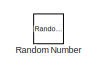
[diagram: root canvas - part 1/3, top left region]
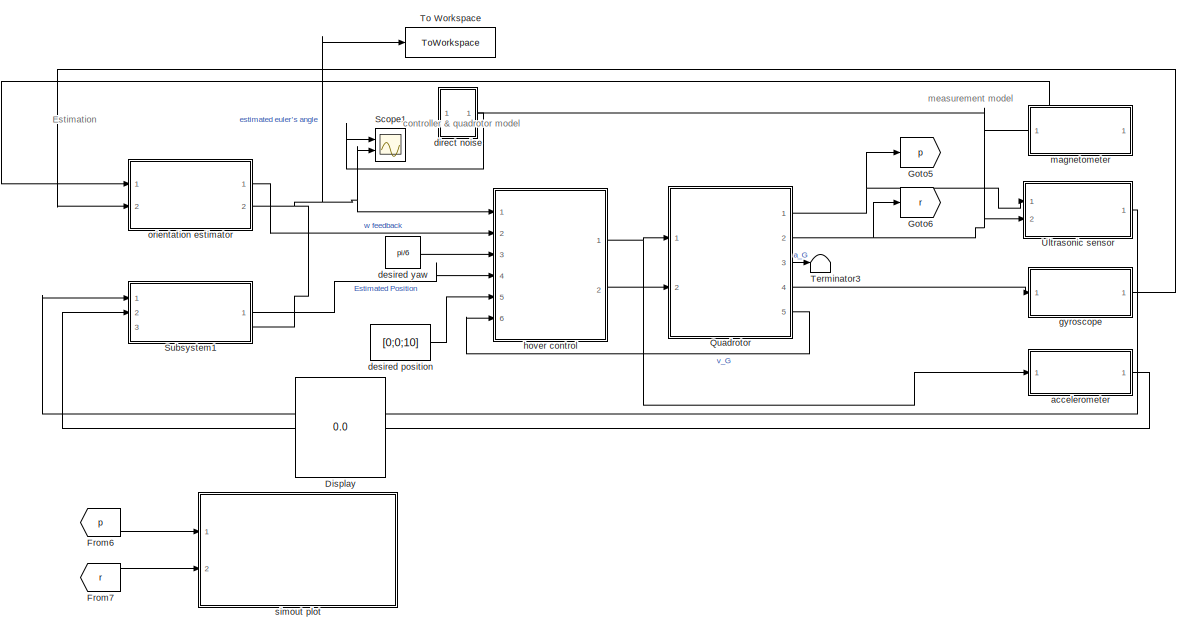
[diagram: root canvas - part 2/3, top center region]
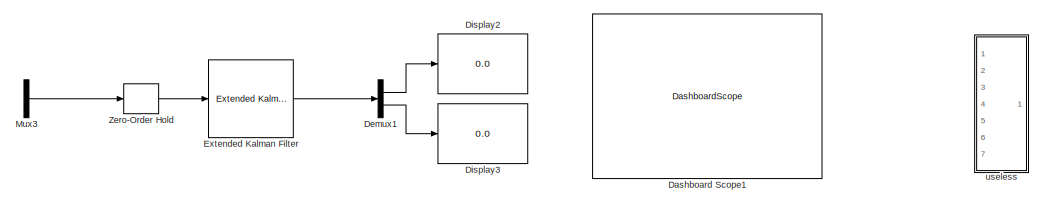
[diagram: root canvas - part 3/3, bottom right region]
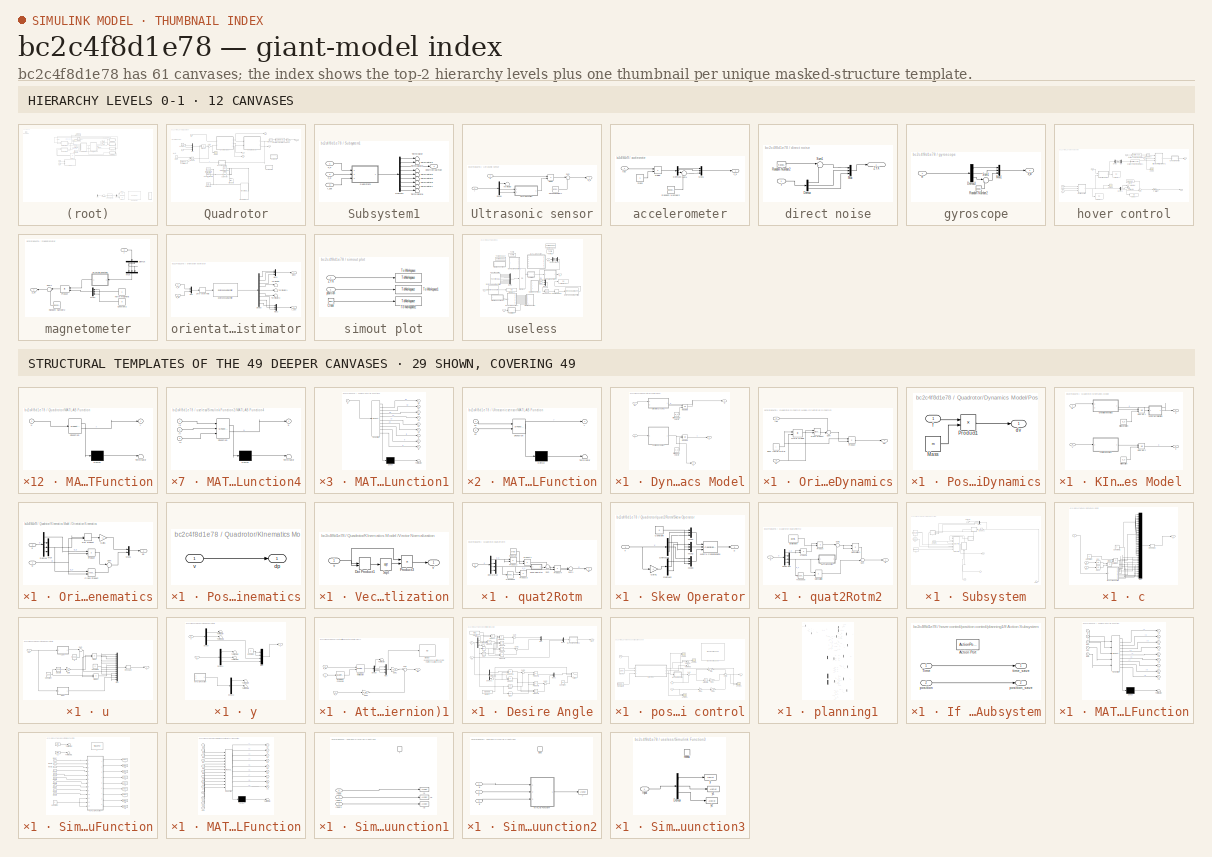
[diagram: thumbnail index - top-2 hierarchy levels (12 canvases) + 29 structural-template representatives of the remaining 49 canvases]
MODEL slx_bc2c4f8d1e78
KIND model
CONFIG AbsTol = auto
CONFIG EnableMultiTasking = off
CONFIG FixedStep = auto
CONFIG MaxStep = auto
CONFIG MinStep = auto
CONFIG RelTol = 1e-1
CONFIG SampleTimeConstraint = Unconstrained
CONFIG SolverName = VariableStepAuto
CONFIG StartTime = 0.0
CONFIG StopTime = 40
BLOCK [DashboardScope] Dashboard Scope1
  Commented = on
BLOCK [Demux] Demux1
  Commented = on
  Outputs = 2
  Ports = [1, 2]
BLOCK [Display] Display
  Decimation = 1
  Ports = [1]
BLOCK [Display] Display2
  Commented = on
  Decimation = 1
  Ports = [1]
BLOCK [Display] Display3
  Commented = on
  Decimation = 1
  Ports = [1]
BLOCK [Reference] Extended Kalman Filter  REF=sharedTrackingLibrary/Extended Kalman Filter
  Commented = on
  Ports = [1, 1]
  SourceBlock = sharedTrackingLibrary/Extended Kalman Filter
  SourceProductBaseCode = CT,DR,TF,ID,LP,NV,AR,RO,RR,UV,VE
  SourceType = Extended Kalman Filter
BLOCK [From] From6
  GotoTag = p
BLOCK [From] From7
  GotoTag = r
BLOCK [Goto] Goto5
  GotoTag = p
BLOCK [Goto] Goto6
  GotoTag = r
BLOCK [Mux] Mux3
  Commented = on
  DisplayOption = bar
  Inputs = 2
  Ports = [2, 1]
BLOCK [SubSystem] Quadrotor
  Ports = [2, 5]
  RequestExecContextInheritance = off
BLOCK [Reference] Quadrotor/6-DOF Joint  REF=sm_lib/Joints/6-DOF Joint
  Commented = on
  Ports = [0, 0, 0, 0, 0, 1, 1]
  SourceBlock = sm_lib/Joints/6-DOF Joint
  SourceProductBaseCode = MS
  SourceType = 6-DOF Joint
BLOCK [Reference] Quadrotor/Brick Solid  REF=sm_lib/Body Elements/Brick Solid
  Commented = on
  NameLocation = right
  Ports = [0, 0, 0, 0, 0, 0, 1]
  SourceBlock = sm_lib/Body Elements/Brick Solid
  SourceProductBaseCode = MS
  SourceType = Brick Solid
BLOCK [Constant] Quadrotor/Constant
  Value = 0
BLOCK [SubSystem] Quadrotor/Dynamics Model
  Ports = [2, 3]
  RequestExecContextInheritance = off
BLOCK [Constant] Quadrotor/Dynamics Model/Initial Angular Velocity
  Value = w_0
BLOCK [Constant] Quadrotor/Dynamics Model/Initial Linear Velocity
  Value = v_0
BLOCK [Integrator] Quadrotor/Dynamics Model/Integrator3
  InitialConditionSource = external
  Ports = [2, 1]
BLOCK [Integrator] Quadrotor/Dynamics Model/Integrator4
  InitialConditionSource = external
  Ports = [2, 1]
BLOCK [SubSystem] Quadrotor/Dynamics Model/Orientation Dynamics
  PortSchema = {"entries":[{"content":{"sides":[{"content":{"connectorIds":["In1"]},"type":"ConnectorPlacement.EquallySpacedRectSide","uuid":"c0bebf24-b4c5-4120-b4bc-e257700e30ac"},{"content":{"connectorIds":["In2","Out1"],"side":"RIGHT"},"type":"ConnectorPlacement.EquallySpacedRectSide","uuid":"4f6c7abb-67af-4a33-8fe1-31c16aba2e01"},{"content":{"connectorIds":[],"side":"TOP"},"type":"ConnectorPlacement.EquallyS...<+390ch>
  Ports = [2, 1]
  RequestExecContextInheritance = off
BLOCK [Constant] Quadrotor/Dynamics Model/Orientation Dynamics/Body Inertia Matrix
  Value = I
BLOCK [Reference] Quadrotor/Dynamics Model/Orientation Dynamics/Cross Product  REF=vrlib/Utilities/Cross Product
  Ports = [2, 1]
  SourceBlock = vrlib/Utilities/Cross Product
  SourceProductBaseCode = SL
  SourceType = Cross Product
BLOCK [Product] Quadrotor/Dynamics Model/Orientation Dynamics/Matrix Multiply
  Multiplication = Matrix(*)
  Ports = [2, 1]
BLOCK [Product] Quadrotor/Dynamics Model/Orientation Dynamics/Product
  Inputs = /*
  Multiplication = Matrix(*)
  OutDataTypeStr = Inherit: Inherit via back propagation
  Ports = [2, 1]
BLOCK [Sum] Quadrotor/Dynamics Model/Orientation Dynamics/Sum
  Inputs = +-|
  Ports = [2, 1]
BLOCK [Outport] Quadrotor/Dynamics Model/Orientation Dynamics/dw
BLOCK [Inport] Quadrotor/Dynamics Model/Orientation Dynamics/tau
BLOCK [Inport] Quadrotor/Dynamics Model/Orientation Dynamics/w
  Port = 2
BLOCK [SubSystem] Quadrotor/Dynamics Model/Position Dynamics
  Ports = [1, 1]
  RequestExecContextInheritance = off
BLOCK [Constant] Quadrotor/Dynamics Model/Position Dynamics/Mass
  Value = m
BLOCK [Product] Quadrotor/Dynamics Model/Position Dynamics/Product1
  Inputs = */
  Ports = [2, 1]
BLOCK [Outport] Quadrotor/Dynamics Model/Position Dynamics/dv
BLOCK [Inport] Quadrotor/Dynamics Model/Position Dynamics/f
BLOCK [Outport] Quadrotor/Dynamics Model/a
  Port = 3
BLOCK [Inport] Quadrotor/Dynamics Model/f
  Port = 2
  PortDimensions = 3
BLOCK [Inport] Quadrotor/Dynamics Model/tau
  PortDimensions = 3
BLOCK [Outport] Quadrotor/Dynamics Model/v
  Port = 2
BLOCK [Outport] Quadrotor/Dynamics Model/w
BLOCK [Reference] Quadrotor/External Force and Torque  REF=sm_lib/Forces and
Torques/External Force
and Torque
  Commented = on
  Ports = [0, 0, 0, 0, 0, 2, 1]
  SourceBlock = sm_lib/Forces and\nTorques/External Force\nand Torque
  SourceProductBaseCode = MS
  SourceType = External Force\nand Torque
BLOCK [Gain] Quadrotor/Gain
  Gain = 1/1.63
BLOCK [SubSystem] Quadrotor/KInematics Model 
  Ports = [2, 2]
  RequestExecContextInheritance = off
BLOCK [Constant] Quadrotor/KInematics Model /Initial Orientation
  Value = q_0
BLOCK [Constant] Quadrotor/KInematics Model /Initial Position
  Value = p_0
BLOCK [Integrator] Quadrotor/KInematics Model /Integrator1
  InitialConditionSource = external
  Ports = [2, 1]
BLOCK [Integrator] Quadrotor/KInematics Model /Integrator2
  InitialConditionSource = external
  Ports = [2, 1]
BLOCK [SubSystem] Quadrotor/KInematics Model /Orientation Kinematics
  PortSchema = {"entries":[{"content":{"sides":[{"content":{"connectorIds":["In1"]},"type":"ConnectorPlacement.EquallySpacedRectSide","uuid":"c0bebf24-b4c5-4120-b4bc-e257700e30ac"},{"content":{"connectorIds":["In2","Out1"],"side":"RIGHT"},"type":"ConnectorPlacement.EquallySpacedRectSide","uuid":"4f6c7abb-67af-4a33-8fe1-31c16aba2e01"},{"content":{"connectorIds":[],"side":"TOP"},"type":"ConnectorPlacement.EquallyS...<+390ch>
  Ports = [2, 1]
  RequestExecContextInheritance = off
BLOCK [Reference] Quadrotor/KInematics Model /Orientation Kinematics/Cross Product  REF=vrlib/Utilities/Cross Product
  Ports = [2, 1]
  SourceBlock = vrlib/Utilities/Cross Product
  SourceProductBaseCode = SL
  SourceType = Cross Product
BLOCK [Demux] Quadrotor/KInematics Model /Orientation Kinematics/Demux
  Ports = [1, 4]
BLOCK [DotProduct] Quadrotor/KInematics Model /Orientation Kinematics/Dot Product
  OutDataTypeStr = Inherit: Inherit via internal rule
BLOCK [Gain] Quadrotor/KInematics Model /Orientation Kinematics/Gain1
  Gain = -1
BLOCK [Mux] Quadrotor/KInematics Model /Orientation Kinematics/Mux
  DisplayOption = bar
  Inputs = 3
  Ports = [3, 1]
BLOCK [Mux] Quadrotor/KInematics Model /Orientation Kinematics/Mux1
  DisplayOption = bar
  Inputs = 2
  Ports = [2, 1]
BLOCK [Product] Quadrotor/KInematics Model /Orientation Kinematics/Product
  Ports = [2, 1]
BLOCK [Sum] Quadrotor/KInematics Model /Orientation Kinematics/Sum
  Inputs = |++
  Ports = [2, 1]
BLOCK [Outport] Quadrotor/KInematics Model /Orientation Kinematics/dq
BLOCK [Inport] Quadrotor/KInematics Model /Orientation Kinematics/q
  Port = 2
BLOCK [Inport] Quadrotor/KInematics Model /Orientation Kinematics/w
BLOCK [SubSystem] Quadrotor/KInematics Model /Position Kinematics
  Ports = [1, 1]
  RequestExecContextInheritance = off
BLOCK [Outport] Quadrotor/KInematics Model /Position Kinematics/dp
BLOCK [Inport] Quadrotor/KInematics Model /Position Kinematics/v
BLOCK [SubSystem] Quadrotor/KInematics Model /Vector Normalization
  Ports = [1, 1]
  RequestExecContextInheritance = off
BLOCK [DotProduct] Quadrotor/KInematics Model /Vector Normalization/Dot Product1
  OutDataTypeStr = Inherit: Inherit via internal rule
BLOCK [Product] Quadrotor/KInematics Model /Vector Normalization/Product3
  Inputs = */
  Ports = [2, 1]
BLOCK [Sqrt] Quadrotor/KInematics Model /Vector Normalization/Sqrt
BLOCK [Inport] Quadrotor/KInematics Model /Vector Normalization/v
BLOCK [Outport] Quadrotor/KInematics Model /Vector Normalization/v'
BLOCK [Outport] Quadrotor/KInematics Model /p
  Port = 2
BLOCK [Outport] Quadrotor/KInematics Model /q
BLOCK [Inport] Quadrotor/KInematics Model /v
  Port = 2
BLOCK [Inport] Quadrotor/KInematics Model /w
BLOCK [SubSystem] Quadrotor/MATLAB Function
  ErrorFcn = Stateflow.Translate.translate
  NameLocation = top
  PermitHierarchicalResolution = ExplicitOnly
  Ports = [1, 1]
  RequestExecContextInheritance = off
  SFBlockType = MATLAB Function
  TreatAsAtomicUnit = on
BLOCK [Demux] Quadrotor/MATLAB Function/ Demux 
  Outputs = 1
  Ports = [1, 1]
BLOCK [S-Function] Quadrotor/MATLAB Function/ SFunction 
  EnableBusSupport = on
  FunctionName = sf_sfun
  PortCounts = [1 2]
  Ports = [1, 2]
  SFcnIsStateOwnerBlock = off
  SFunctionDeploymentMode = off
  Tag = Stateflow S-Function 2
BLOCK [Terminator] Quadrotor/MATLAB Function/ Terminator 
BLOCK [Inport] Quadrotor/MATLAB Function/u
BLOCK [Outport] Quadrotor/MATLAB Function/y
BLOCK [Constant] Quadrotor/Mass
BLOCK [Reference] Quadrotor/Mechanism Configuration  REF=sm_lib/Utilities/Mechanism
Configuration
  Commented = on
  Ports = [0, 0, 0, 0, 0, 0, 1]
  SourceBlock = sm_lib/Utilities/Mechanism\nConfiguration
  SourceProductBaseCode = MS
  SourceType = Mechanism\nConfiguration
BLOCK [Mux] Quadrotor/Mux
  DisplayOption = bar
  Inputs = 3
  Ports = [3, 1]
BLOCK [Product] Quadrotor/Product
  Multiplication = Matrix(*)
  Ports = [2, 1]
BLOCK [Product] Quadrotor/Product1
  Ports = [2, 1]
BLOCK [Reference] Quadrotor/Quaternions to Rotation Angles  REF=sharedtransform/Quaternions to Rotation Angles
  AttributesFormatString = Rotation Order: %<rotationOrder>
  Ports = [1, 1]
  SourceBlock = sharedtransform/Quaternions to Rotation Angles
  SourceProductBaseCode = AE,PW,DR,MT,UV,VE
  SourceType = Quat2Ang
BLOCK [Scope] Quadrotor/Scope
  Floating = off
  NumInputPorts = 1
  Ports = [1]
  ScopeSpecificationString = Simulink.scopes.TimeScopeBlockCfg('CurrentConfiguration', extmgr.ConfigurationSet(extmgr.Configuration('Core','General UI',true),extmgr.Configuration('Core','Source UI',true),extmgr.Configuration('Sources','WiredSimulink',true,'DataLoggingVariableName','ScopeData4'),extmgr.Configuration('Visuals','Time Domain',true,'SerializedDisplays',{struct('MinYLimReal','-0.68944','MaxYLimReal','0.74873','YLab...<+1380ch>
BLOCK [Reference] Quadrotor/Solver Configuration  REF=nesl_utility/Solver
Configuration
  Commented = on
  Ports = [0, 0, 0, 0, 0, 0, 1]
  SourceBlock = nesl_utility/Solver\nConfiguration
  SourceProductBaseCode = SS
  SourceType = Solver\nConfiguration
BLOCK [Sum] Quadrotor/Sum
  Inputs = |++
  Ports = [2, 1]
BLOCK [Reference] Quadrotor/Transform Sensor  REF=sm_lib/Frames and
Transforms/Transform
Sensor
  Commented = on
  NameLocation = top
  Ports = [0, 0, 0, 0, 0, 1, 11]
  SourceBlock = sm_lib/Frames and\nTransforms/Transform\nSensor
  SourceProductBaseCode = MS
  SourceType = Transform\nSensor
BLOCK [Math] Quadrotor/Transpose1
  Operator = transpose
  Ports = [1, 1]
BLOCK [Reference] Quadrotor/World Frame  REF=sm_lib/Frames and
Transforms/World Frame
  Commented = on
  Ports = [0, 0, 0, 0, 0, 0, 1]
  SourceBlock = sm_lib/Frames and\nTransforms/World Frame
  SourceProductBaseCode = MS
  SourceType = World Frame
BLOCK [Outport] Quadrotor/a
  Port = 3
  SampleTime = 1/50
BLOCK [Inport] Quadrotor/f
  Port = 2
  SampleTime = 1/50
BLOCK [Constant] Quadrotor/gravity
  Value = [0;0;-9.80665]
BLOCK [Outport] Quadrotor/p
  SampleTime = 1/50
BLOCK [SubSystem] Quadrotor/quat2Rotm
  Commented = on
  NameLocation = top
  Ports = [1, 1]
  RequestExecContextInheritance = off
BLOCK [Constant] Quadrotor/quat2Rotm/Constant
  Value = eye(3)
BLOCK [Demux] Quadrotor/quat2Rotm/Demux
  Ports = [1, 4]
BLOCK [Mux] Quadrotor/quat2Rotm/Mux
  DisplayOption = bar
  Inputs = 3
  Ports = [3, 1]
BLOCK [Product] Quadrotor/quat2Rotm/Product1
  Ports = [2, 1]
BLOCK [Product] Quadrotor/quat2Rotm/Product2
  Ports = [2, 1]
BLOCK [Product] Quadrotor/quat2Rotm/Product3
  Multiplication = Matrix(*)
  Ports = [2, 1]
BLOCK [Product] Quadrotor/quat2Rotm/Product4
  Multiplication = Matrix(*)
  Ports = [2, 1]
BLOCK [Outport] Quadrotor/quat2Rotm/R
BLOCK [SubSystem] Quadrotor/quat2Rotm/Skew Operator
  Description = S(v)
  Ports = [1, 1]
  RequestExecContextInheritance = off
BLOCK [Constant] Quadrotor/quat2Rotm/Skew Operator/Constant
  Value = 0
BLOCK [Demux] Quadrotor/quat2Rotm/Skew Operator/Demux1
  Outputs = 3
  Ports = [1, 3]
BLOCK [Demux] Quadrotor/quat2Rotm/Skew Operator/Demux2
  Outputs = 3
  Ports = [1, 3]
BLOCK [Gain] Quadrotor/quat2Rotm/Skew Operator/Gain1
  Gain = -1
BLOCK [Concatenate] Quadrotor/quat2Rotm/Skew Operator/Matrix Concatenate
  ConcatenateDimension = 2
  Mode = Multidimensional array
  NumInputs = 3
  Ports = [3, 1]
BLOCK [Mux] Quadrotor/quat2Rotm/Skew Operator/Mux1
  DisplayOption = bar
  Inputs = 3
  Ports = [3, 1]
BLOCK [Mux] Quadrotor/quat2Rotm/Skew Operator/Mux2
  DisplayOption = bar
  Inputs = 3
  Ports = [3, 1]
BLOCK [Mux] Quadrotor/quat2Rotm/Skew Operator/Mux3
  DisplayOption = bar
  Inputs = 3
  Ports = [3, 1]
BLOCK [Outport] Quadrotor/quat2Rotm/Skew Operator/S
BLOCK [Inport] Quadrotor/quat2Rotm/Skew Operator/v
BLOCK [Sum] Quadrotor/quat2Rotm/Sum
  Inputs = ++|
  Ports = [2, 1]
BLOCK [Sum] Quadrotor/quat2Rotm/Sum1
  Inputs = |++
  Ports = [2, 1]
BLOCK [Math] Quadrotor/quat2Rotm/Transpose
  Operator = transpose
  Ports = [1, 1]
BLOCK [Inport] Quadrotor/quat2Rotm/q
BLOCK [SubSystem] Quadrotor/quat2Rotm2
  Commented = on
  NameLocation = top
  Ports = [1, 1]
  RequestExecContextInheritance = off
BLOCK [Demux] Quadrotor/quat2Rotm2/Demux
  Ports = [1, 4]
BLOCK [Reference] Quadrotor/quat2Rotm2/Identity Matrix  REF=dspmtrx3/Identity Matrix
  Ports = [0, 1]
  SourceBlock = dspmtrx3/Identity Matrix
  SourceProductBaseCode = DS
  SourceType = Identity Matrix
BLOCK [SubSystem] Quadrotor/quat2Rotm2/MATLAB Function
  ErrorFcn = Stateflow.Translate.translate
  PermitHierarchicalResolution = ExplicitOnly
  Ports = [1, 1]
  RequestExecContextInheritance = off
  SFBlockType = MATLAB Function
  TreatAsAtomicUnit = on
BLOCK [Demux] Quadrotor/quat2Rotm2/MATLAB Function/ Demux 
  Outputs = 1
  Ports = [1, 1]
BLOCK [S-Function] Quadrotor/quat2Rotm2/MATLAB Function/ SFunction 
  EnableBusSupport = on
  FunctionName = sf_sfun
  PortCounts = [1 2]
  Ports = [1, 2]
  SFcnIsStateOwnerBlock = off
  SFunctionDeploymentMode = off
  Tag = Stateflow S-Function 4
BLOCK [Terminator] Quadrotor/quat2Rotm2/MATLAB Function/ Terminator 
BLOCK [Inport] Quadrotor/quat2Rotm2/MATLAB Function/u
BLOCK [Outport] Quadrotor/quat2Rotm2/MATLAB Function/y
BLOCK [Product] Quadrotor/quat2Rotm2/MatrixMultiply
  Multiplication = Matrix(*)
  Ports = [2, 1]
BLOCK [Product] Quadrotor/quat2Rotm2/MatrixMultiply1
  Multiplication = Matrix(*)
  Ports = [2, 1]
BLOCK [Mux] Quadrotor/quat2Rotm2/Mux
  DisplayOption = bar
  Inputs = 3
  Ports = [3, 1]
BLOCK [Product] Quadrotor/quat2Rotm2/Product
  Ports = [2, 1]
BLOCK [Product] Quadrotor/quat2Rotm2/Product1
  Ports = [2, 1]
BLOCK [Outport] Quadrotor/quat2Rotm2/R
BLOCK [Sum] Quadrotor/quat2Rotm2/Sum
  Inputs = ++|
  Ports = [2, 1]
BLOCK [Sum] Quadrotor/quat2Rotm2/Sum1
  Inputs = |++
  Ports = [2, 1]
BLOCK [Math] Quadrotor/quat2Rotm2/Transpose
  Operator = transpose
  Ports = [1, 1]
BLOCK [Inport] Quadrotor/quat2Rotm2/q
BLOCK [Outport] Quadrotor/r
  Port = 2
  SampleTime = 1/50
BLOCK [Inport] Quadrotor/tau
  SampleTime = 1/50
BLOCK [Outport] Quadrotor/v
  Port = 5
  SampleTime = 1/50
BLOCK [Outport] Quadrotor/w
  Port = 4
  SampleTime = 1/50
BLOCK [RandomNumber] Random Number
  Commented = on
  SampleTime = 0.1
BLOCK [Scope] Scope1
  Floating = off
  NumInputPorts = 2
  Ports = [2]
  ScopeSpecificationString = Simulink.scopes.TimeScopeBlockCfg('CurrentConfiguration', extmgr.ConfigurationSet(extmgr.Configuration('Core','General UI',true),extmgr.Configuration('Core','Source UI',true),extmgr.Configuration('Sources','WiredSimulink',true,'DataLoggingVariableName','ScopeData2'),extmgr.Configuration('Visuals','Time Domain',true,'SerializedDisplays',{struct('MinYLimReal','-0.12868','MaxYLimReal','1.1274','YLabe...<+1711ch>
BLOCK [SubSystem] Subsystem1
  PortSchema = {"entries":[{"content":{"sides":[{"content":{"connectorIds":["In1","In2"]},"type":"ConnectorPlacement.EquallySpacedRectSide","uuid":"ff0e47d5-67a6-410d-af15-00f9184d5f56"},{"content":{"connectorIds":["In3","Out1"],"side":"RIGHT"},"type":"ConnectorPlacement.EquallySpacedRectSide","uuid":"3604025b-9f7e-46ce-b48f-09d2018bc808"},{"content":{"connectorIds":[],"side":"TOP"},"type":"ConnectorPlacement.Eq...<+252ch>
  Ports = [3, 1]
  RequestExecContextInheritance = off
BLOCK [Demux] Subsystem1/Demux1
  Outputs = 9
  Ports = [1, 9]
BLOCK [SubSystem] Subsystem1/Subsystem
  Ports = [3, 1]
  RequestExecContextInheritance = off
BLOCK [Constant] Subsystem1/Subsystem/A1
  SampleTime = 1/100
  Value = [1 0 0 1/100 0 0 0 0 0;0 1 0 0 1/100 0 0 0 0;0 0 1 0 0 1/100 0 0 0;0 0 0 1 0 0 0 0 0;0 0 0 0 1 0 0 0 0;0 0 0 0 0 1 0 0 0;0 0 0 0 0 0 0 0 0;0 0 0 0 0 0 0 0 0;0 0 0 0 0 0 0 0 0]
BLOCK [Constant] Subsystem1/Subsystem/B1
  SampleTime = 1/100
  Value = [1 0 0 0 0 0 0 0 0 0 0 0 0;0 1 0 0 0 0 0 0 0 0 0 0 0;0 0 1 0 0 0 0 0 0 0 0 0 0;0 0 0 1 0 0 0 0 0 0 0 0 0;0 0 0 0 1 0 0 0 0 0 0 0 0;0 0 0 0 0 1 0 0 0 0 0 0 0;0 0 0 0 0 0 1 0 0 0 0 0 0;0 0 0 0 0 0 0 1 0 0 0 0 0;0 0 0 0 0 0 0 0 1 0 0 0 0]
BLOCK [Constant] Subsystem1/Subsystem/Constant2
  Value = [0;0;0;0;0;0;0;0;0]
BLOCK [Constant] Subsystem1/Subsystem/D1
  SampleTime = 1/100
  Value = [0 0 0 0 0 0 0 0 0 1 0 0 0;0 0 0 0 0 0 0 0 0 0 1 0 0;0 0 0 0 0 0 0 0 0 0 0 1 0;0 0 0 0 0 0 0 0 0 0 0 0 1]
BLOCK [Demux] Subsystem1/Subsystem/Demux
  NameLocation = top
  Outputs = 3
  Ports = [1, 3]
BLOCK [Reference] Subsystem1/Subsystem/Kalman Filter  REF=ctrlSharedLib/Kalman Filter
  Ports = [8, 1]
  SourceBlock = ctrlSharedLib/Kalman Filter
  SourceProductBaseCode = CT,ID
  SourceType = ctrlKalmanFilter
BLOCK [Inport] Subsystem1/Subsystem/RotZYX
  Port = 3
BLOCK [Terminator] Subsystem1/Subsystem/Terminator1
  NameLocation = top
BLOCK [Math] Subsystem1/Subsystem/Transpose2
  NameLocation = top
  Operator = transpose
  Ports = [1, 1]
BLOCK [Inport] Subsystem1/Subsystem/a_G
  NameLocation = top
  Port = 2
BLOCK [SubSystem] Subsystem1/Subsystem/c
  NameLocation = top
  Ports = [3, 1]
  RequestExecContextInheritance = off
BLOCK [Constant] Subsystem1/Subsystem/c/Constant
BLOCK [Constant] Subsystem1/Subsystem/c/Constant1
  Value = 0
BLOCK [Trigonometry] Subsystem1/Subsystem/c/Cos
  Operator = cos
  Ports = [1, 1]
BLOCK [Trigonometry] Subsystem1/Subsystem/c/Cos1
  Operator = cos
  Ports = [1, 1]
BLOCK [Product] Subsystem1/Subsystem/c/Divide
  Inputs = **
  Ports = [2, 1]
BLOCK [Product] Subsystem1/Subsystem/c/Divide1
  Inputs = */
  Ports = [2, 1]
BLOCK [Inport] Subsystem1/Subsystem/c/In2
  Port = 2
BLOCK [Inport] Subsystem1/Subsystem/c/In3
  Port = 3
BLOCK [SubSystem] Subsystem1/Subsystem/c/MATLAB Function
  ErrorFcn = Stateflow.Translate.translate
  PermitHierarchicalResolution = ExplicitOnly
  Ports = [1, 9]
  RequestExecContextInheritance = off
  SFBlockType = MATLAB Function
  TreatAsAtomicUnit = on
BLOCK [Demux] Subsystem1/Subsystem/c/MATLAB Function/ Demux 
  Outputs = 1
  Ports = [1, 1]
BLOCK [S-Function] Subsystem1/Subsystem/c/MATLAB Function/ SFunction 
  EnableBusSupport = on
  FunctionName = sf_sfun
  PortCounts = [1 10]
  Ports = [1, 10]
  SFcnIsStateOwnerBlock = off
  SFunctionDeploymentMode = off
  Tag = Stateflow S-Function 8
BLOCK [Terminator] Subsystem1/Subsystem/c/MATLAB Function/ Terminator 
BLOCK [Outport] Subsystem1/Subsystem/c/MATLAB Function/r1
BLOCK [Outport] Subsystem1/Subsystem/c/MATLAB Function/r2
  Port = 2
BLOCK [Outport] Subsystem1/Subsystem/c/MATLAB Function/r3
  Port = 3
BLOCK [Outport] Subsystem1/Subsystem/c/MATLAB Function/r4
  Port = 4
BLOCK [Outport] Subsystem1/Subsystem/c/MATLAB Function/r5
  Port = 5
BLOCK [Outport] Subsystem1/Subsystem/c/MATLAB Function/r6
  Port = 6
BLOCK [Outport] Subsystem1/Subsystem/c/MATLAB Function/r7
  Port = 7
BLOCK [Outport] Subsystem1/Subsystem/c/MATLAB Function/r8
  Port = 8
BLOCK [Outport] Subsystem1/Subsystem/c/MATLAB Function/r9
  Port = 9
BLOCK [Inport] Subsystem1/Subsystem/c/MATLAB Function/u
BLOCK [Mux] Subsystem1/Subsystem/c/Mux
  DisplayOption = bar
  Inputs = 36
  Ports = [36, 1]
BLOCK [Reshape] Subsystem1/Subsystem/c/Reshape
  OutputDimensionality = Customize
  OutputDimensions = [4,9]
  Ports = [1, 1]
BLOCK [Outport] Subsystem1/Subsystem/c/c
  SampleTime = 1/100
BLOCK [Inport] Subsystem1/Subsystem/c/y
  SampleTime = 1/100
BLOCK [SubSystem] Subsystem1/Subsystem/euler
  ErrorFcn = Stateflow.Translate.translate
  NameLocation = top
  PermitHierarchicalResolution = ExplicitOnly
  Ports = [1, 1]
  RequestExecContextInheritance = off
  SFBlockType = MATLAB Function
  TreatAsAtomicUnit = on
BLOCK [Demux] Subsystem1/Subsystem/euler/ Demux 
  Outputs = 1
  Ports = [1, 1]
BLOCK [S-Function] Subsystem1/Subsystem/euler/ SFunction 
  EnableBusSupport = on
  FunctionName = sf_sfun
  PortCounts = [1 2]
  Ports = [1, 2]
  SFcnIsStateOwnerBlock = off
  SFunctionDeploymentMode = off
  Tag = Stateflow S-Function 6
BLOCK [Terminator] Subsystem1/Subsystem/euler/ Terminator 
BLOCK [Inport] Subsystem1/Subsystem/euler/u
BLOCK [Outport] Subsystem1/Subsystem/euler/y
BLOCK [Inport] Subsystem1/Subsystem/p
BLOCK [SubSystem] Subsystem1/Subsystem/u
  NameLocation = top
  PortSchema = {"entries":[{"content":{"sides":[{"content":{"connectorIds":[]},"type":"ConnectorPlacement.EquallySpacedRectSide","uuid":"26540b1e-a89b-4888-9ec4-fd7f7f630feb"},{"content":{"connectorIds":["Out1"],"side":"RIGHT"},"type":"ConnectorPlacement.EquallySpacedRectSide","uuid":"c38f773a-f816-4bcf-adbb-33b029198f6a"},{"content":{"connectorIds":["In1"],"side":"TOP"},"type":"ConnectorPlacement.EquallySpacedR...<+240ch>
  Ports = [1, 1]
  RequestExecContextInheritance = off
BLOCK [Constant] Subsystem1/Subsystem/u/Constant
  Value = 1/100
BLOCK [Constant] Subsystem1/Subsystem/u/Constant1
  Value = 0
BLOCK [Product] Subsystem1/Subsystem/u/Divide
  Inputs = **
  Ports = [2, 1]
BLOCK [Product] Subsystem1/Subsystem/u/Divide1
  Inputs = **
  Ports = [2, 1]
BLOCK [Gain] Subsystem1/Subsystem/u/Gain
  Gain = 0.5
BLOCK [Mux] Subsystem1/Subsystem/u/Mux
  DisplayOption = bar
  Inputs = 13
  Ports = [13, 1]
BLOCK [Reshape] Subsystem1/Subsystem/u/Reshape
  OutputDimensionality = Customize
  OutputDimensions = [13,1]
  Ports = [1, 1]
BLOCK [Math] Subsystem1/Subsystem/u/Square
  Operator = square
  Ports = [1, 1]
BLOCK [Sum] Subsystem1/Subsystem/u/Sum
  Inputs = |+-
  Ports = [2, 1]
BLOCK [Inport] Subsystem1/Subsystem/u/eul
BLOCK [Constant] Subsystem1/Subsystem/u/g
  Value = 9.80665
BLOCK [SubSystem] Subsystem1/Subsystem/u/g get
  ErrorFcn = Stateflow.Translate.translate
  PermitHierarchicalResolution = ExplicitOnly
  Ports = [1, 1]
  RequestExecContextInheritance = off
  SFBlockType = MATLAB Function
  TreatAsAtomicUnit = on
BLOCK [Demux] Subsystem1/Subsystem/u/g get/ Demux 
  Outputs = 1
  Ports = [1, 1]
BLOCK [S-Function] Subsystem1/Subsystem/u/g get/ SFunction 
  EnableBusSupport = on
  FunctionName = sf_sfun
  PortCounts = [1 2]
  Ports = [1, 2]
  SFcnIsStateOwnerBlock = off
  SFunctionDeploymentMode = off
  Tag = Stateflow S-Function 9
BLOCK [Terminator] Subsystem1/Subsystem/u/g get/ Terminator 
BLOCK [Inport] Subsystem1/Subsystem/u/g get/u
BLOCK [Outport] Subsystem1/Subsystem/u/g get/y
BLOCK [Outport] Subsystem1/Subsystem/u/u
  SampleTime = 1/100
BLOCK [SubSystem] Subsystem1/Subsystem/u/z get
  ErrorFcn = Stateflow.Translate.translate
  PermitHierarchicalResolution = ExplicitOnly
  Ports = [1, 1]
  RequestExecContextInheritance = off
  SFBlockType = MATLAB Function
  TreatAsAtomicUnit = on
BLOCK [Demux] Subsystem1/Subsystem/u/z get/ Demux 
  Outputs = 1
  Ports = [1, 1]
BLOCK [S-Function] Subsystem1/Subsystem/u/z get/ SFunction 
  EnableBusSupport = on
  FunctionName = sf_sfun
  PortCounts = [1 2]
  Ports = [1, 2]
  SFcnIsStateOwnerBlock = off
  SFunctionDeploymentMode = off
  Tag = Stateflow S-Function 7
BLOCK [Terminator] Subsystem1/Subsystem/u/z get/ Terminator 
BLOCK [Inport] Subsystem1/Subsystem/u/z get/u
BLOCK [Outport] Subsystem1/Subsystem/u/z get/y
BLOCK [Outport] Subsystem1/Subsystem/xhat
BLOCK [SubSystem] Subsystem1/Subsystem/y
  NameLocation = right
  Ports = [2, 1]
  RequestExecContextInheritance = off
BLOCK [Constant] Subsystem1/Subsystem/y/Constant
  Value = 0
BLOCK [Demux] Subsystem1/Subsystem/y/Demux
  Outputs = 3
  Ports = [1, 3]
BLOCK [Demux] Subsystem1/Subsystem/y/Demux1
  Outputs = 3
  Ports = [1, 3]
BLOCK [Demux] Subsystem1/Subsystem/y/Demux2
  Commented = on
  Outputs = 3
  Ports = [1, 3]
BLOCK [SubSystem] Subsystem1/Subsystem/y/MATLAB Function
  Commented = on
  ErrorFcn = Stateflow.Translate.translate
  PermitHierarchicalResolution = ExplicitOnly
  Ports = [2, 1]
  RequestExecContextInheritance = off
  SFBlockType = MATLAB Function
  TreatAsAtomicUnit = on
BLOCK [Demux] Subsystem1/Subsystem/y/MATLAB Function/ Demux 
  Outputs = 1
  Ports = [1, 1]
BLOCK [S-Function] Subsystem1/Subsystem/y/MATLAB Function/ SFunction 
  EnableBusSupport = on
  FunctionName = sf_sfun
  PortCounts = [2 2]
  Ports = [2, 2]
  SFcnIsStateOwnerBlock = off
  SFunctionDeploymentMode = off
  Tag = Stateflow S-Function 28
BLOCK [Terminator] Subsystem1/Subsystem/y/MATLAB Function/ Terminator 
BLOCK [Inport] Subsystem1/Subsystem/y/MATLAB Function/a
  Port = 2
BLOCK [Inport] Subsystem1/Subsystem/y/MATLAB Function/r
BLOCK [Outport] Subsystem1/Subsystem/y/MATLAB Function/y
BLOCK [Mux] Subsystem1/Subsystem/y/Mux
  DisplayOption = bar
  Ports = [4, 1]
BLOCK [Terminator] Subsystem1/Subsystem/y/Terminator
BLOCK [Terminator] Subsystem1/Subsystem/y/Terminator1
BLOCK [Terminator] Subsystem1/Subsystem/y/Terminator2
BLOCK [Terminator] Subsystem1/Subsystem/y/Terminator3
BLOCK [Terminator] Subsystem1/Subsystem/y/Terminator4
  Commented = on
BLOCK [Terminator] Subsystem1/Subsystem/y/Terminator5
  Commented = on
BLOCK [Inport] Subsystem1/Subsystem/y/a
BLOCK [Inport] Subsystem1/Subsystem/y/p
  Port = 2
BLOCK [Outport] Subsystem1/Subsystem/y/y
  SampleTime = 1/100
BLOCK [Terminator] Subsystem1/Terminator
BLOCK [Terminator] Subsystem1/Terminator2
BLOCK [Terminator] Subsystem1/Terminator3
BLOCK [Terminator] Subsystem1/Terminator5
BLOCK [Terminator] Subsystem1/Terminator6
BLOCK [Terminator] Subsystem1/Terminator7
BLOCK [Terminator] Subsystem1/Terminator8
BLOCK [Terminator] Subsystem1/Terminator9
BLOCK [Outport] Subsystem1/position kalman
BLOCK [Inport] Subsystem1/r_est
  Port = 3
BLOCK [Inport] Subsystem1/z_a
  Port = 2
BLOCK [Inport] Subsystem1/z_u
BLOCK [Terminator] Terminator3
BLOCK [ToWorkspace] To Workspace
  FixptAsFi = on
  MaxDataPoints = inf
  Ports = [1]
  SampleTime = 1/50
  SaveFormat = Timeseries
  VariableName = S50
BLOCK [SubSystem] Ultrasonic sensor
  Ports = [2, 1]
  RequestExecContextInheritance = off
BLOCK [Demux] Ultrasonic sensor/Demux
  Outputs = 3
  Ports = [1, 3]
BLOCK [Product] Ultrasonic sensor/Divide
  Inputs = */
  Ports = [2, 1]
BLOCK [SubSystem] Ultrasonic sensor/MATLAB Function
  ErrorFcn = Stateflow.Translate.translate
  PermitHierarchicalResolution = ExplicitOnly
  Ports = [2, 1]
  RequestExecContextInheritance = off
  SFBlockType = MATLAB Function
  TreatAsAtomicUnit = on
BLOCK [Demux] Ultrasonic sensor/MATLAB Function/ Demux 
  Outputs = 1
  Ports = [1, 1]
BLOCK [S-Function] Ultrasonic sensor/MATLAB Function/ SFunction 
  EnableBusSupport = on
  FunctionName = sf_sfun
  PortCounts = [2 2]
  Ports = [2, 2]
  SFcnIsStateOwnerBlock = off
  SFunctionDeploymentMode = off
  Tag = Stateflow S-Function 27
BLOCK [Terminator] Ultrasonic sensor/MATLAB Function/ Terminator 
BLOCK [Inport] Ultrasonic sensor/MATLAB Function/u1
BLOCK [Inport] Ultrasonic sensor/MATLAB Function/u2
  Port = 2
BLOCK [Outport] Ultrasonic sensor/MATLAB Function/y
BLOCK [RandomNumber] Ultrasonic sensor/Random Number1
  SampleTime = 0.05
  Variance = 0.05
BLOCK [Sum] Ultrasonic sensor/Sum
  Inputs = |++
  Ports = [2, 1]
BLOCK [Terminator] Ultrasonic sensor/Terminator
BLOCK [Inport] Ultrasonic sensor/p
BLOCK [Inport] Ultrasonic sensor/r
  Port = 2
BLOCK [Outport] Ultrasonic sensor/z_u
BLOCK [ZeroOrderHold] Zero-Order Hold
  Commented = on
  SampleTime = 0.01
BLOCK [SubSystem] accelerometer
  Ports = [1, 1]
  RequestExecContextInheritance = off
BLOCK [Demux] accelerometer/Demux3
  Outputs = 3
  Ports = [1, 3]
BLOCK [Product] accelerometer/Divide
  Inputs = */
  Ports = [2, 1]
BLOCK [Mux] accelerometer/Mux1
  DisplayOption = bar
  Inputs = 3
  Ports = [3, 1]
BLOCK [RandomNumber] accelerometer/Random Number2
  SampleTime = 0.01
  Variance = 0.000001
BLOCK [Sum] accelerometer/Sum1
  Inputs = |++
  Ports = [2, 1]
BLOCK [Constant] accelerometer/mass
BLOCK [Inport] accelerometer/tau
BLOCK [Outport] accelerometer/z_a
BLOCK [Constant] desired position
  Value = [0;0;10]
BLOCK [Constant] desired yaw
  Value = pi/6
BLOCK [SubSystem] direct noise
  PortSchema = {"entries":[{"content":{"sides":[{"content":{"connectorIds":[]},"type":"ConnectorPlacement.EquallySpacedRectSide","uuid":"c51df378-8ff8-4d17-a243-2bd48f2a1343"},{"content":{"connectorIds":["In1","Out1"],"side":"RIGHT"},"type":"ConnectorPlacement.EquallySpacedRectSide","uuid":"e335f112-6ed8-4a5c-b285-a63f6c692f38"},{"content":{"connectorIds":[],"side":"TOP"},"type":"ConnectorPlacement.EquallySpaced...<+241ch>
  Ports = [1, 1]
  RequestExecContextInheritance = off
BLOCK [Demux] direct noise/Demux
  Outputs = 3
  Ports = [1, 3]
BLOCK [Mux] direct noise/Mux
  DisplayOption = bar
  Inputs = 3
  Ports = [3, 1]
BLOCK [RandomNumber] direct noise/Random Number2
  SampleTime = 0.01
  Variance = 0.001
BLOCK [Sum] direct noise/Sum1
  Inputs = |++
  Ports = [2, 1]
BLOCK [Outport] direct noise/ZYX
BLOCK [Inport] direct noise/r
BLOCK [SubSystem] gyroscope
  Ports = [1, 1]
  RequestExecContextInheritance = off
BLOCK [Demux] gyroscope/Demux3
  Outputs = 3
  Ports = [1, 3]
BLOCK [Mux] gyroscope/Mux1
  DisplayOption = bar
  Inputs = 3
  Ports = [3, 1]
BLOCK [RandomNumber] gyroscope/Random Number2
  SampleTime = 0.03
  Variance = 0.00005
BLOCK [Sum] gyroscope/Sum1
  Inputs = |++
  Ports = [2, 1]
BLOCK [Inport] gyroscope/w
BLOCK [Outport] gyroscope/z_w
BLOCK [SubSystem] hover control
  Ports = [6, 2]
  RequestExecContextInheritance = off
BLOCK [SubSystem] hover control/Attitude Control (Quaternion)1
  Ports = [3, 1]
  RequestExecContextInheritance = off
BLOCK [Demux] hover control/Attitude Control (Quaternion)1/Demux
  Ports = [1, 4]
BLOCK [Display] hover control/Attitude Control (Quaternion)1/Display
  Decimation = 1
  Ports = [1]
BLOCK [Gain] hover control/Attitude Control (Quaternion)1/Gain1
  Gain = K_q
  Multiplication = Matrix(K*u)
BLOCK [Gain] hover control/Attitude Control (Quaternion)1/Gain2
  Gain = K_w
  Multiplication = Matrix(K*u)
BLOCK [Mux] hover control/Attitude Control (Quaternion)1/Mux
  DisplayOption = bar
  Inputs = 3
  Ports = [3, 1]
BLOCK [Reference] hover control/Attitude Control (Quaternion)1/Quaternion Conjugate  REF=aerolibutil/Quaternion
Conjugate
  Ports = [1, 1]
  SourceBlock = aerolibutil/Quaternion\nConjugate
  SourceProductBaseCode = AE
  SourceType = Quaternion Conjugate
BLOCK [Reference] hover control/Attitude Control (Quaternion)1/Quaternion Multiplication  REF=aerolibutil/Quaternion
Multiplication
  Ports = [2, 1]
  SourceBlock = aerolibutil/Quaternion\nMultiplication
  SourceProductBaseCode = AE
  SourceType = Quaternion Multiplication
BLOCK [Sum] hover control/Attitude Control (Quaternion)1/Sum
  Inputs = |+-
  Ports = [2, 1]
BLOCK [Terminator] hover control/Attitude Control (Quaternion)1/Terminator
BLOCK [Inport] hover control/Attitude Control (Quaternion)1/q
BLOCK [Inport] hover control/Attitude Control (Quaternion)1/q_ref
  Port = 3
BLOCK [Outport] hover control/Attitude Control (Quaternion)1/tau
BLOCK [Inport] hover control/Attitude Control (Quaternion)1/w_e
  Port = 2
BLOCK [Demux] hover control/Demux
  Outputs = 3
  Ports = [1, 3]
BLOCK [Demux] hover control/Demux1
  Outputs = 3
  Ports = [1, 3]
BLOCK [SubSystem] hover control/Desire Angle
  Ports = [2, 1]
  RequestExecContextInheritance = off
BLOCK [Constant] hover control/Desire Angle/Constant
  Commented = on
  Value = [0;0]
BLOCK [Trigonometry] hover control/Desire Angle/Cos
  Operator = cos
  Ports = [1, 1]
BLOCK [Trigonometry] hover control/Desire Angle/Cos1
  Commented = on
  Operator = cos
  Ports = [1, 1]
BLOCK [Demux] hover control/Desire Angle/Demux
  Outputs = 3
  Ports = [1, 3]
BLOCK [Demux] hover control/Desire Angle/Demux1
  Commented = on
  Outputs = 3
  Ports = [1, 3]
BLOCK [SubSystem] hover control/Desire Angle/MATLAB Function2
  ErrorFcn = Stateflow.Translate.translate
  PermitHierarchicalResolution = ExplicitOnly
  Ports = [1, 1]
  RequestExecContextInheritance = off
  SFBlockType = MATLAB Function
  TreatAsAtomicUnit = on
BLOCK [Demux] hover control/Desire Angle/MATLAB Function2/ Demux 
  Outputs = 1
  Ports = [1, 1]
BLOCK [S-Function] hover control/Desire Angle/MATLAB Function2/ SFunction 
  EnableBusSupport = on
  FunctionName = sf_sfun
  PortCounts = [1 2]
  Ports = [1, 2]
  SFcnIsStateOwnerBlock = off
  SFunctionDeploymentMode = off
  Tag = Stateflow S-Function 3
BLOCK [Terminator] hover control/Desire Angle/MATLAB Function2/ Terminator 
BLOCK [Inport] hover control/Desire Angle/MATLAB Function2/u
BLOCK [Outport] hover control/Desire Angle/MATLAB Function2/y
BLOCK [Mux] hover control/Desire Angle/Mux
  DisplayOption = bar
  Inputs = 2
  Ports = [2, 1]
BLOCK [Mux] hover control/Desire Angle/Mux1
  DisplayOption = bar
  Inputs = 2
  Ports = [2, 1]
BLOCK [Mux] hover control/Desire Angle/Mux2
  Commented = on
  DisplayOption = bar
  Inputs = 2
  Ports = [2, 1]
BLOCK [Product] hover control/Desire Angle/Product
  Inputs = */
  Ports = [2, 1]
BLOCK [Product] hover control/Desire Angle/Product1
  Ports = [2, 1]
BLOCK [Product] hover control/Desire Angle/Product12
  Commented = on
  Inputs = */
  Ports = [2, 1]
BLOCK [Product] hover control/Desire Angle/Product2
  Inputs = */
  Ports = [2, 1]
BLOCK [Product] hover control/Desire Angle/Product3
  Ports = [2, 1]
BLOCK [Product] hover control/Desire Angle/Product4
  Ports = [2, 1]
BLOCK [Product] hover control/Desire Angle/Product5
  Ports = [2, 1]
BLOCK [Product] hover control/Desire Angle/Product6
  Commented = on
  Inputs = */
  Ports = [2, 1]
BLOCK [Product] hover control/Desire Angle/Product7
  Commented = on
  Inputs = */
  Ports = [2, 1]
BLOCK [Product] hover control/Desire Angle/Product8
  Commented = on
  Ports = [2, 1]
BLOCK [Product] hover control/Desire Angle/Product9
  Commented = on
  Ports = [2, 1]
BLOCK [Outport] hover control/Desire Angle/RPY
BLOCK [Trigonometry] hover control/Desire Angle/Sin
  Ports = [1, 1]
BLOCK [Trigonometry] hover control/Desire Angle/Sin1
  Commented = on
  Ports = [1, 1]
BLOCK [Sum] hover control/Desire Angle/Sum
  Inputs = |+-
  Ports = [2, 1]
BLOCK [Sum] hover control/Desire Angle/Sum1
  Inputs = |++
  Ports = [2, 1]
BLOCK [Sum] hover control/Desire Angle/Sum2
  Commented = on
  Inputs = |+-
  Ports = [2, 1]
BLOCK [Sum] hover control/Desire Angle/Sum3
  Commented = on
  Inputs = |++
  Ports = [2, 1]
BLOCK [Switch] hover control/Desire Angle/Switch
  Commented = on
  Criteria = u2 > Threshold
  InputSameDT = off
  SaturateOnIntegerOverflow = off
BLOCK [Terminator] hover control/Desire Angle/Terminator
BLOCK [Terminator] hover control/Desire Angle/Terminator1
  Commented = on
BLOCK [Inport] hover control/Desire Angle/a
  Port = 2
BLOCK [Constant] hover control/Desire Angle/gravity
  Value = -9.81
  VectorParams1D = off
BLOCK [Constant] hover control/Desire Angle/gravity1
  Commented = on
  Value = 9.80665
  VectorParams1D = off
BLOCK [Inport] hover control/Desire Angle/r_z
BLOCK [Display] hover control/Display
  Decimation = 1
  Ports = [1]
BLOCK [Display] hover control/Display1
  Decimation = 1
  Ports = [1]
BLOCK [Display] hover control/Display7
  Decimation = 1
  Ports = [1]
BLOCK [Gain] hover control/Gain1
  Gain = mass
BLOCK [SubSystem] hover control/MATLAB Function
  ErrorFcn = Stateflow.Translate.translate
  PermitHierarchicalResolution = ExplicitOnly
  Ports = [1, 1]
  RequestExecContextInheritance = off
  SFBlockType = MATLAB Function
  TreatAsAtomicUnit = on
BLOCK [Demux] hover control/MATLAB Function/ Demux 
  Outputs = 1
  Ports = [1, 1]
BLOCK [S-Function] hover control/MATLAB Function/ SFunction 
  EnableBusSupport = on
  FunctionName = sf_sfun
  PortCounts = [1 2]
  Ports = [1, 2]
  SFcnIsStateOwnerBlock = off
  SFunctionDeploymentMode = off
  Tag = Stateflow S-Function 5
BLOCK [Terminator] hover control/MATLAB Function/ Terminator 
BLOCK [Inport] hover control/MATLAB Function/u
BLOCK [Outport] hover control/MATLAB Function/y
BLOCK [Mux] hover control/Mux
  DisplayOption = bar
  Inputs = 3
  Ports = [3, 1]
BLOCK [Reference] hover control/Rotation Angles to Quaternions  REF=sharedtransform/Rotation Angles to Quaternions
  AttributesFormatString = Rotation Order: %<rotationOrder>
  Ports = [1, 1]
  SourceBlock = sharedtransform/Rotation Angles to Quaternions
  SourceProductBaseCode = AE,PW,DR,MT,UV,VE
  SourceType = Ang2Quat
BLOCK [Reference] hover control/Rotation Angles to Quaternions1  REF=sharedtransform/Rotation Angles to Quaternions
  AttributesFormatString = Rotation Order: %<rotationOrder>
  Ports = [1, 1]
  SourceBlock = sharedtransform/Rotation Angles to Quaternions
  SourceProductBaseCode = AE,PW,DR,MT,UV,VE
  SourceType = Ang2Quat
BLOCK [Scope] hover control/Scope
  Floating = off
  NumInputPorts = 1
  Ports = [1]
  ScopeSpecificationString = Simulink.scopes.TimeScopeBlockCfg('CurrentConfiguration', extmgr.ConfigurationSet(extmgr.Configuration('Core','General UI',true),extmgr.Configuration('Core','Source UI',true),extmgr.Configuration('Sources','WiredSimulink',true,'DataLoggingVariableName','ScopeData3'),extmgr.Configuration('Visuals','Time Domain',true,'SerializedDisplays',{struct('MinYLimReal','-6.18474','MaxYLimReal','5.65569','YLab...<+1427ch>
BLOCK [Scope] hover control/Scope1
  Floating = off
  NumInputPorts = 1
  Ports = [1]
  ScopeSpecificationString = Simulink.scopes.TimeScopeBlockCfg('CurrentConfiguration', extmgr.ConfigurationSet(extmgr.Configuration('Core','General UI',true),extmgr.Configuration('Core','Source UI',true),extmgr.Configuration('Sources','WiredSimulink',true,'DataLoggingVariableName','ScopeData2'),extmgr.Configuration('Visuals','Time Domain',true,'SerializedDisplays',{struct('MinYLimReal','-0.62998','MaxYLimReal','0.86079','YLab...<+1472ch>
BLOCK [Sum] hover control/Sum
  Inputs = ++|
  Ports = [2, 1]
BLOCK [Terminator] hover control/Terminator1
BLOCK [Terminator] hover control/Terminator2
BLOCK [Math] hover control/Transpose
  Operator = transpose
  Ports = [1, 1]
BLOCK [Outport] hover control/f
  Port = 2
  SampleTime = 1/50
BLOCK [Constant] hover control/gravity
  Value = 9.80665
  VectorParams1D = off
BLOCK [Inport] hover control/p
  Port = 4
  SampleTime = 1/50
BLOCK [Inport] hover control/p_d
  Port = 5
  SampleTime = 1/100
BLOCK [SubSystem] hover control/position control
  Ports = [3, 1]
  RequestExecContextInheritance = off
BLOCK [Clock] hover control/position control/Clock1
  DisplayTime = on
BLOCK [Constant] hover control/position control/Constant1
  Value = [0.5;0.5;0.5]
BLOCK [DashboardScope] hover control/position control/Dashboard Scope
BLOCK [Gain] hover control/position control/Gain
  Gain = K_p
  Multiplication = Matrix(K*u)
BLOCK [Gain] hover control/position control/Gain1
  Gain = K_d
  Multiplication = Matrix(K*u)
BLOCK [Gain] hover control/position control/Gain2
  Gain = K_i
  Multiplication = Matrix(K*u)
BLOCK [Gain] hover control/position control/Gain3
  Gain = -1
BLOCK [Integrator] hover control/position control/Integrator2
  Ports = [1, 1]
BLOCK [SubSystem] hover control/position control/MATLAB Function
  ErrorFcn = Stateflow.Translate.translate
  PermitHierarchicalResolution = ExplicitOnly
  Ports = [1, 1]
  RequestExecContextInheritance = off
  SFBlockType = MATLAB Function
  TreatAsAtomicUnit = on
BLOCK [Demux] hover control/position control/MATLAB Function/ Demux 
  Outputs = 1
  Ports = [1, 1]
BLOCK [S-Function] hover control/position control/MATLAB Function/ SFunction 
  EnableBusSupport = on
  FunctionName = sf_sfun
  PortCounts = [1 2]
  Ports = [1, 2]
  SFcnIsStateOwnerBlock = off
  SFunctionDeploymentMode = off
  Tag = Stateflow S-Function 1
BLOCK [Terminator] hover control/position control/MATLAB Function/ Terminator 
BLOCK [Inport] hover control/position control/MATLAB Function/u
BLOCK [Outport] hover control/position control/MATLAB Function/y
BLOCK [Scope] hover control/position control/Scope
  Floating = off
  NumInputPorts = 2
  Ports = [2]
  ScopeSpecificationString = Simulink.scopes.TimeScopeBlockCfg('CurrentConfiguration', extmgr.ConfigurationSet(extmgr.Configuration('Core','General UI',true),extmgr.Configuration('Core','Source UI',true),extmgr.Configuration('Sources','WiredSimulink',true,'DataLoggingVariableName','ScopeData2'),extmgr.Configuration('Visuals','Time Domain',true,'SerializedDisplays',{struct('MinYLimReal','-1.26121','MaxYLimReal','11.35092','YLa...<+1461ch>
BLOCK [Scope] hover control/position control/Scope1
  Floating = off
  NumInputPorts = 2
  Ports = [2]
  ScopeSpecificationString = Simulink.scopes.TimeScopeBlockCfg('CurrentConfiguration', extmgr.ConfigurationSet(extmgr.Configuration('Core','General UI',true),extmgr.Configuration('Core','Source UI',true),extmgr.Configuration('Sources','WiredSimulink',true,'DataLoggingVariableName','ScopeData1'),extmgr.Configuration('Visuals','Time Domain',true,'SerializedDisplays',{struct('MinYLimReal','-0.29503','MaxYLimReal','2.01364','YLab...<+1457ch>
BLOCK [Scope] hover control/position control/Scope2
  Floating = off
  NumInputPorts = 1
  Ports = [1]
  ScopeSpecificationString = Simulink.scopes.TimeScopeBlockCfg('CurrentConfiguration', extmgr.ConfigurationSet(extmgr.Configuration('Core','General UI',true),extmgr.Configuration('Core','Source UI',true),extmgr.Configuration('Sources','WiredSimulink',true,'DataLoggingVariableName','ScopeData2'),extmgr.Configuration('Visuals','Time Domain',true,'SerializedDisplays',{struct('MinYLimReal','-0.625','MaxYLimReal','0.625','YLabelRe...<+1427ch>
BLOCK [Scope] hover control/position control/Scope3
  Floating = off
  NumInputPorts = 2
  Ports = [2]
  ScopeSpecificationString = Simulink.scopes.TimeScopeBlockCfg('CurrentConfiguration', extmgr.ConfigurationSet(extmgr.Configuration('Core','General UI',true),extmgr.Configuration('Core','Source UI',true),extmgr.Configuration('Sources','WiredSimulink',true,'DataLoggingVariableName','ScopeData4'),extmgr.Configuration('Visuals','Time Domain',true,'SerializedDisplays',{struct('MinYLimReal','-0.85649','MaxYLimReal','0.84936','YLab...<+1471ch>
BLOCK [Sum] hover control/position control/Sum
  Inputs = |+-
  Ports = [2, 1]
BLOCK [Sum] hover control/position control/Sum2
  Inputs = +++
  Ports = [3, 1]
BLOCK [Terminator] hover control/position control/Terminator
BLOCK [Terminator] hover control/position control/Terminator1
BLOCK [Outport] hover control/position control/a
  SampleTime = 1/50
BLOCK [Inport] hover control/position control/p
  Port = 2
BLOCK [Inport] hover control/position control/p_d
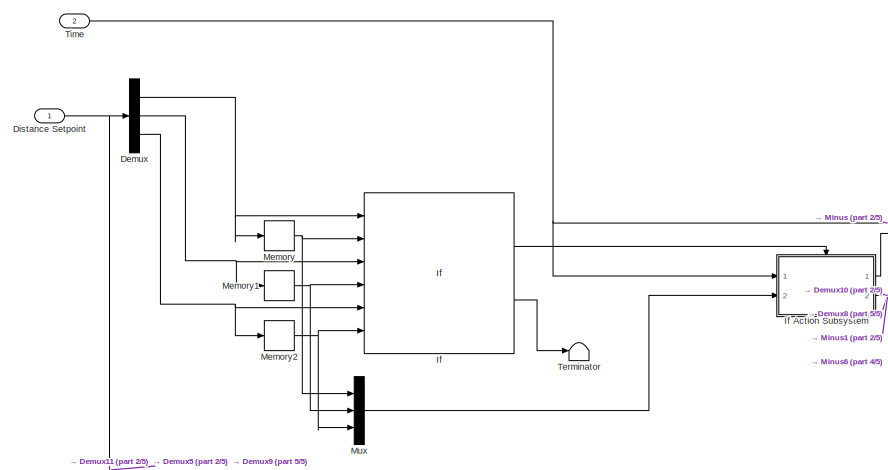
[diagram: hover control/position control/planning1 - part 1/5, top left region]
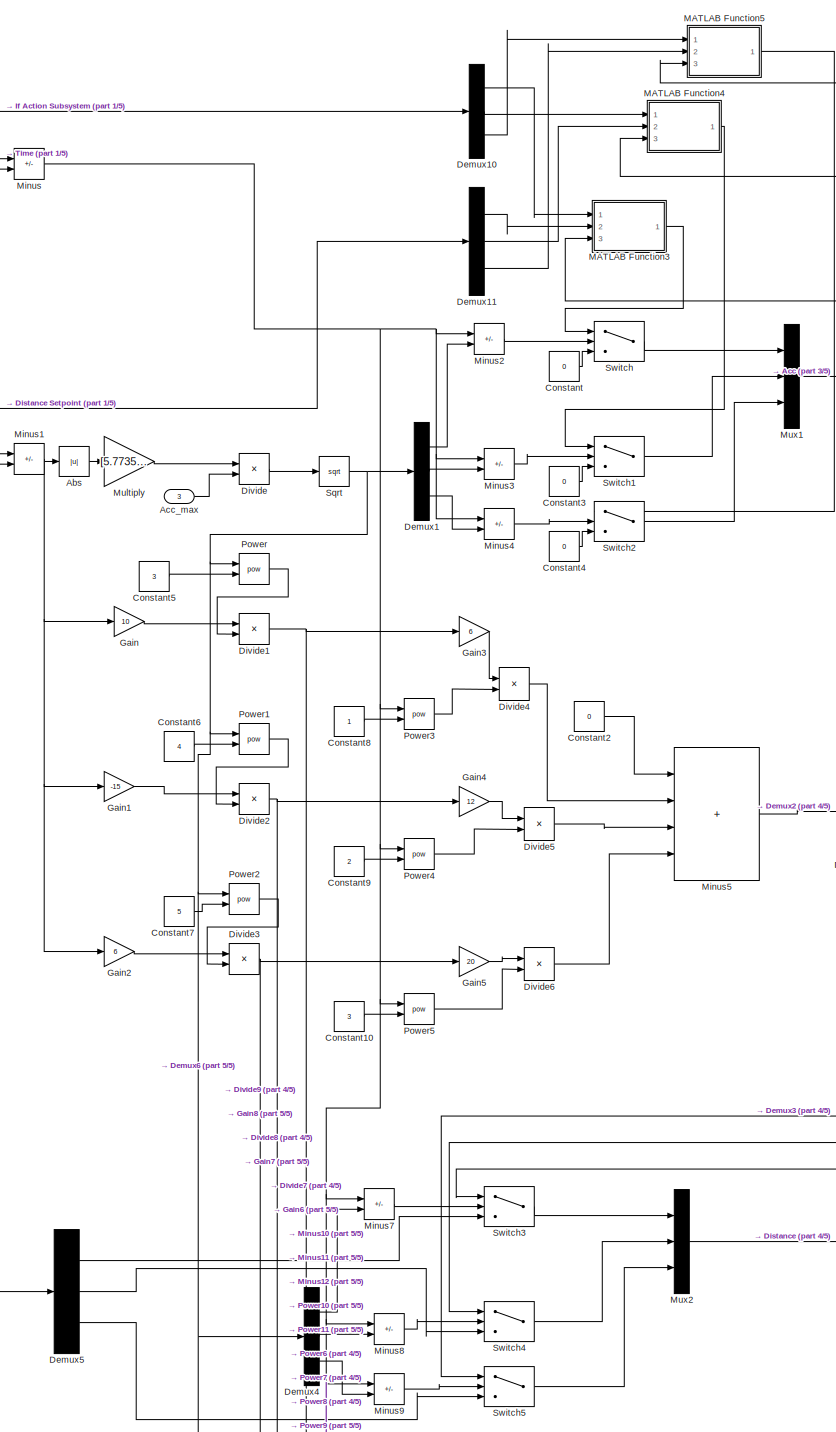
[diagram: hover control/position control/planning1 - part 2/5, top center region]
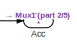
[diagram: hover control/position control/planning1 - part 3/5, top right region]
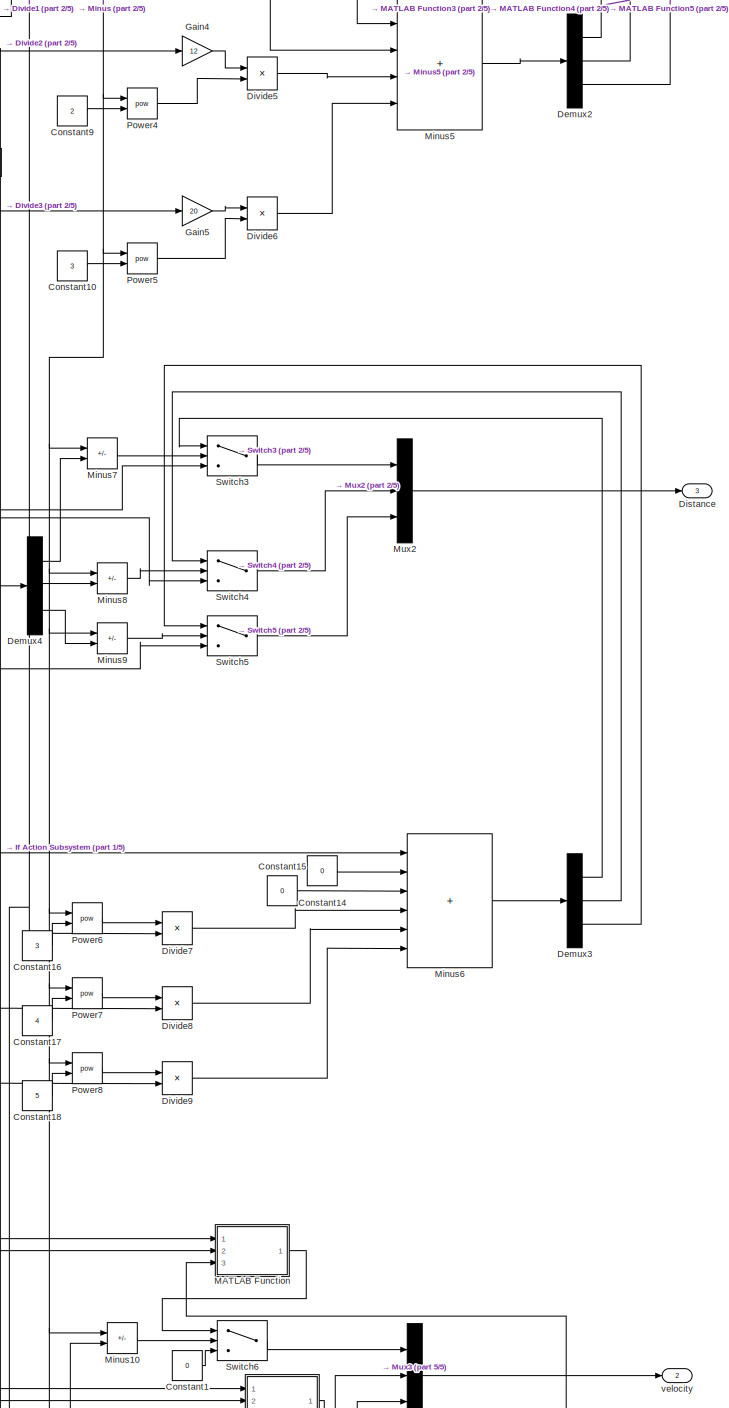
[diagram: hover control/position control/planning1 - part 4/5, middle right region]
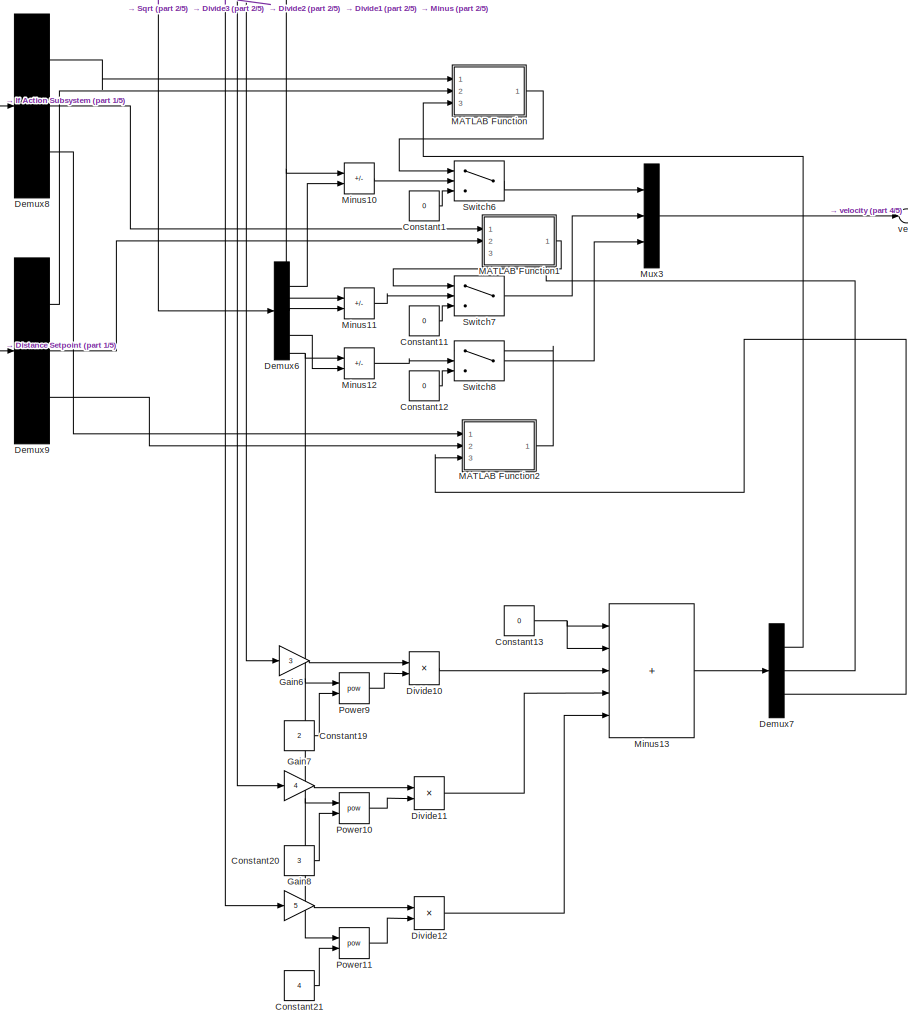
[diagram: hover control/position control/planning1 - part 5/5, bottom right region]
BLOCK [SubSystem] hover control/position control/planning1
  Ports = [3, 3]
  RequestExecContextInheritance = off
BLOCK [Abs] hover control/position control/planning1/Abs
  SaturateOnIntegerOverflow = off
BLOCK [Outport] hover control/position control/planning1/Acc 
BLOCK [Inport] hover control/position control/planning1/Acc_max
  Port = 3
BLOCK [Constant] hover control/position control/planning1/Constant
  Value = 0
BLOCK [Constant] hover control/position control/planning1/Constant1
  Value = 0
BLOCK [Constant] hover control/position control/planning1/Constant10
  Value = 3
BLOCK [Constant] hover control/position control/planning1/Constant11
  Value = 0
BLOCK [Constant] hover control/position control/planning1/Constant12
  Value = 0
BLOCK [Constant] hover control/position control/planning1/Constant13
  Value = 0
BLOCK [Constant] hover control/position control/planning1/Constant14
  Value = 0
BLOCK [Constant] hover control/position control/planning1/Constant15
  Value = 0
BLOCK [Constant] hover control/position control/planning1/Constant16
  Value = 3
BLOCK [Constant] hover control/position control/planning1/Constant17
  Value = 4
BLOCK [Constant] hover control/position control/planning1/Constant18
  Value = 5
BLOCK [Constant] hover control/position control/planning1/Constant19
  Value = 2
BLOCK [Constant] hover control/position control/planning1/Constant2
  Value = 0
BLOCK [Constant] hover control/position control/planning1/Constant20
  Value = 3
BLOCK [Constant] hover control/position control/planning1/Constant21
  Value = 4
BLOCK [Constant] hover control/position control/planning1/Constant3
  Value = 0
BLOCK [Constant] hover control/position control/planning1/Constant4
  Value = 0
BLOCK [Constant] hover control/position control/planning1/Constant5
  Value = 3
BLOCK [Constant] hover control/position control/planning1/Constant6
  Value = 4
BLOCK [Constant] hover control/position control/planning1/Constant7
  Value = 5
BLOCK [Constant] hover control/position control/planning1/Constant8
BLOCK [Constant] hover control/position control/planning1/Constant9
  Value = 2
BLOCK [Demux] hover control/position control/planning1/Demux
  Outputs = 3
  Ports = [1, 3]
BLOCK [Demux] hover control/position control/planning1/Demux1
  Outputs = 3
  Ports = [1, 3]
BLOCK [Demux] hover control/position control/planning1/Demux10
  Outputs = 3
  Ports = [1, 3]
BLOCK [Demux] hover control/position control/planning1/Demux11
  Outputs = 3
  Ports = [1, 3]
BLOCK [Demux] hover control/position control/planning1/Demux2
  Outputs = 3
  Ports = [1, 3]
BLOCK [Demux] hover control/position control/planning1/Demux3
  Outputs = 3
  Ports = [1, 3]
BLOCK [Demux] hover control/position control/planning1/Demux4
  Outputs = 3
  Ports = [1, 3]
BLOCK [Demux] hover control/position control/planning1/Demux5
  Outputs = 3
  Ports = [1, 3]
BLOCK [Demux] hover control/position control/planning1/Demux6
  Outputs = 3
  Ports = [1, 3]
BLOCK [Demux] hover control/position control/planning1/Demux7
  Outputs = 3
  Ports = [1, 3]
BLOCK [Demux] hover control/position control/planning1/Demux8
  Outputs = 3
  Ports = [1, 3]
BLOCK [Demux] hover control/position control/planning1/Demux9
  Outputs = 3
  Ports = [1, 3]
BLOCK [Outport] hover control/position control/planning1/Distance
  NameLocation = right
  Port = 3
BLOCK [Inport] hover control/position control/planning1/Distance Setpoint
BLOCK [Product] hover control/position control/planning1/Divide
  Inputs = */
  Ports = [2, 1]
BLOCK [Product] hover control/position control/planning1/Divide1
  Inputs = */
  Ports = [2, 1]
BLOCK [Product] hover control/position control/planning1/Divide10
  Inputs = **
  Ports = [2, 1]
BLOCK [Product] hover control/position control/planning1/Divide11
  Inputs = **
  Ports = [2, 1]
BLOCK [Product] hover control/position control/planning1/Divide12
  Inputs = **
  Ports = [2, 1]
BLOCK [Product] hover control/position control/planning1/Divide2
  Inputs = */
  Ports = [2, 1]
BLOCK [Product] hover control/position control/planning1/Divide3
  Inputs = */
  Ports = [2, 1]
BLOCK [Product] hover control/position control/planning1/Divide4
  Inputs = **
  Ports = [2, 1]
BLOCK [Product] hover control/position control/planning1/Divide5
  Inputs = **
  Ports = [2, 1]
BLOCK [Product] hover control/position control/planning1/Divide6
  Inputs = **
  Ports = [2, 1]
BLOCK [Product] hover control/position control/planning1/Divide7
  Inputs = **
  Ports = [2, 1]
BLOCK [Product] hover control/position control/planning1/Divide8
  Inputs = **
  Ports = [2, 1]
BLOCK [Product] hover control/position control/planning1/Divide9
  Inputs = **
  Ports = [2, 1]
BLOCK [Gain] hover control/position control/planning1/Gain
  Gain = 10
BLOCK [Gain] hover control/position control/planning1/Gain1
  Gain = -15
BLOCK [Gain] hover control/position control/planning1/Gain2
  Gain = 6
BLOCK [Gain] hover control/position control/planning1/Gain3
  Gain = 6
BLOCK [Gain] hover control/position control/planning1/Gain4
  Gain = 12
BLOCK [Gain] hover control/position control/planning1/Gain5
  Gain = 20
BLOCK [Gain] hover control/position control/planning1/Gain6
  Gain = 3
BLOCK [Gain] hover control/position control/planning1/Gain7
  Gain = 4
BLOCK [Gain] hover control/position control/planning1/Gain8
  Gain = 5
BLOCK [If] hover control/position control/planning1/If
  IfExpression = (u1~=u2 | u3~=u4 | u5~=u6)
  NumInputs = 6
  Ports = [6, 2]
BLOCK [SubSystem] hover control/position control/planning1/If Action Subsystem
  Ports = [2, 2, 0, 0, 0, 0, 0, 1]
  RequestExecContextInheritance = off
  TreatAsAtomicUnit = on
BLOCK [ActionPort] hover control/position control/planning1/If Action Subsystem/Action Port
  ActionPortLabel = if((u1~=u2 | u3~=u4 | u5~=u6))
  InitializeStates = reset
  PropagateVarSize = During execution
BLOCK [Inport] hover control/position control/planning1/If Action Subsystem/Time
BLOCK [Inport] hover control/position control/planning1/If Action Subsystem/position
  Port = 2
BLOCK [Outport] hover control/position control/planning1/If Action Subsystem/position_save
  Port = 2
BLOCK [Outport] hover control/position control/planning1/If Action Subsystem/time_save 
BLOCK [SubSystem] hover control/position control/planning1/MATLAB Function
  ErrorFcn = Stateflow.Translate.translate
  PermitHierarchicalResolution = ExplicitOnly
  Ports = [3, 1]
  RequestExecContextInheritance = off
  SFBlockType = MATLAB Function
  TreatAsAtomicUnit = on
BLOCK [Demux] hover control/position control/planning1/MATLAB Function/ Demux 
  Outputs = 1
  Ports = [1, 1]
BLOCK [S-Function] hover control/position control/planning1/MATLAB Function/ SFunction 
  EnableBusSupport = on
  FunctionName = sf_sfun
  PortCounts = [3 2]
  Ports = [3, 2]
  SFcnIsStateOwnerBlock = off
  SFunctionDeploymentMode = off
  Tag = Stateflow S-Function 15
BLOCK [Terminator] hover control/position control/planning1/MATLAB Function/ Terminator 
BLOCK [Inport] hover control/position control/planning1/MATLAB Function/e
  Port = 3
BLOCK [Inport] hover control/position control/planning1/MATLAB Function/q
BLOCK [Inport] hover control/position control/planning1/MATLAB Function/w
  Port = 2
BLOCK [Outport] hover control/position control/planning1/MATLAB Function/y
BLOCK [SubSystem] hover control/position control/planning1/MATLAB Function1
  ErrorFcn = Stateflow.Translate.translate
  PermitHierarchicalResolution = ExplicitOnly
  Ports = [3, 1]
  RequestExecContextInheritance = off
  SFBlockType = MATLAB Function
  TreatAsAtomicUnit = on
BLOCK [Demux] hover control/position control/planning1/MATLAB Function1/ Demux 
  Outputs = 1
  Ports = [1, 1]
BLOCK [S-Function] hover control/position control/planning1/MATLAB Function1/ SFunction 
  EnableBusSupport = on
  FunctionName = sf_sfun
  PortCounts = [3 2]
  Ports = [3, 2]
  SFcnIsStateOwnerBlock = off
  SFunctionDeploymentMode = off
  Tag = Stateflow S-Function 16
BLOCK [Terminator] hover control/position control/planning1/MATLAB Function1/ Terminator 
BLOCK [Inport] hover control/position control/planning1/MATLAB Function1/e
  Port = 3
BLOCK [Inport] hover control/position control/planning1/MATLAB Function1/q
BLOCK [Inport] hover control/position control/planning1/MATLAB Function1/w
  Port = 2
BLOCK [Outport] hover control/position control/planning1/MATLAB Function1/y
BLOCK [SubSystem] hover control/position control/planning1/MATLAB Function2
  ErrorFcn = Stateflow.Translate.translate
  PermitHierarchicalResolution = ExplicitOnly
  Ports = [3, 1]
  RequestExecContextInheritance = off
  SFBlockType = MATLAB Function
  TreatAsAtomicUnit = on
BLOCK [Demux] hover control/position control/planning1/MATLAB Function2/ Demux 
  Outputs = 1
  Ports = [1, 1]
BLOCK [S-Function] hover control/position control/planning1/MATLAB Function2/ SFunction 
  EnableBusSupport = on
  FunctionName = sf_sfun
  PortCounts = [3 2]
  Ports = [3, 2]
  SFcnIsStateOwnerBlock = off
  SFunctionDeploymentMode = off
  Tag = Stateflow S-Function 17
BLOCK [Terminator] hover control/position control/planning1/MATLAB Function2/ Terminator 
BLOCK [Inport] hover control/position control/planning1/MATLAB Function2/e
  Port = 3
BLOCK [Inport] hover control/position control/planning1/MATLAB Function2/q
BLOCK [Inport] hover control/position control/planning1/MATLAB Function2/w
  Port = 2
BLOCK [Outport] hover control/position control/planning1/MATLAB Function2/y
BLOCK [SubSystem] hover control/position control/planning1/MATLAB Function3
  ErrorFcn = Stateflow.Translate.translate
  PermitHierarchicalResolution = ExplicitOnly
  Ports = [3, 1]
  RequestExecContextInheritance = off
  SFBlockType = MATLAB Function
  TreatAsAtomicUnit = on
BLOCK [Demux] hover control/position control/planning1/MATLAB Function3/ Demux 
  Outputs = 1
  Ports = [1, 1]
BLOCK [S-Function] hover control/position control/planning1/MATLAB Function3/ SFunction 
  EnableBusSupport = on
  FunctionName = sf_sfun
  PortCounts = [3 2]
  Ports = [3, 2]
  SFcnIsStateOwnerBlock = off
  SFunctionDeploymentMode = off
  Tag = Stateflow S-Function 18
BLOCK [Terminator] hover control/position control/planning1/MATLAB Function3/ Terminator 
BLOCK [Inport] hover control/position control/planning1/MATLAB Function3/e
  Port = 3
BLOCK [Inport] hover control/position control/planning1/MATLAB Function3/q
BLOCK [Inport] hover control/position control/planning1/MATLAB Function3/w
  Port = 2
BLOCK [Outport] hover control/position control/planning1/MATLAB Function3/y
BLOCK [SubSystem] hover control/position control/planning1/MATLAB Function4
  ErrorFcn = Stateflow.Translate.translate
  PermitHierarchicalResolution = ExplicitOnly
  Ports = [3, 1]
  RequestExecContextInheritance = off
  SFBlockType = MATLAB Function
  TreatAsAtomicUnit = on
BLOCK [Demux] hover control/position control/planning1/MATLAB Function4/ Demux 
  Outputs = 1
  Ports = [1, 1]
BLOCK [S-Function] hover control/position control/planning1/MATLAB Function4/ SFunction 
  EnableBusSupport = on
  FunctionName = sf_sfun
  PortCounts = [3 2]
  Ports = [3, 2]
  SFcnIsStateOwnerBlock = off
  SFunctionDeploymentMode = off
  Tag = Stateflow S-Function 19
BLOCK [Terminator] hover control/position control/planning1/MATLAB Function4/ Terminator 
BLOCK [Inport] hover control/position control/planning1/MATLAB Function4/e
  Port = 3
BLOCK [Inport] hover control/position control/planning1/MATLAB Function4/q
BLOCK [Inport] hover control/position control/planning1/MATLAB Function4/w
  Port = 2
BLOCK [Outport] hover control/position control/planning1/MATLAB Function4/y
BLOCK [SubSystem] hover control/position control/planning1/MATLAB Function5
  ErrorFcn = Stateflow.Translate.translate
  PermitHierarchicalResolution = ExplicitOnly
  Ports = [3, 1]
  RequestExecContextInheritance = off
  SFBlockType = MATLAB Function
  TreatAsAtomicUnit = on
BLOCK [Demux] hover control/position control/planning1/MATLAB Function5/ Demux 
  Outputs = 1
  Ports = [1, 1]
BLOCK [S-Function] hover control/position control/planning1/MATLAB Function5/ SFunction 
  EnableBusSupport = on
  FunctionName = sf_sfun
  PortCounts = [3 2]
  Ports = [3, 2]
  SFcnIsStateOwnerBlock = off
  SFunctionDeploymentMode = off
  Tag = Stateflow S-Function 20
BLOCK [Terminator] hover control/position control/planning1/MATLAB Function5/ Terminator 
BLOCK [Inport] hover control/position control/planning1/MATLAB Function5/e
  Port = 3
BLOCK [Inport] hover control/position control/planning1/MATLAB Function5/q
BLOCK [Inport] hover control/position control/planning1/MATLAB Function5/w
  Port = 2
BLOCK [Outport] hover control/position control/planning1/MATLAB Function5/y
BLOCK [Memory] hover control/position control/planning1/Memory
BLOCK [Memory] hover control/position control/planning1/Memory1
BLOCK [Memory] hover control/position control/planning1/Memory2
BLOCK [Sum] hover control/position control/planning1/Minus
  IconShape = rectangular
  Inputs = +-
  Ports = [2, 1]
BLOCK [Sum] hover control/position control/planning1/Minus1
  IconShape = rectangular
  Inputs = +-
  Ports = [2, 1]
BLOCK [Sum] hover control/position control/planning1/Minus10
  IconShape = rectangular
  Inputs = -+
  Ports = [2, 1]
BLOCK [Sum] hover control/position control/planning1/Minus11
  IconShape = rectangular
  Inputs = -+
  Ports = [2, 1]
BLOCK [Sum] hover control/position control/planning1/Minus12
  IconShape = rectangular
  Inputs = -+
  Ports = [2, 1]
BLOCK [Sum] hover control/position control/planning1/Minus13
  IconShape = rectangular
  Inputs = +++++
  Ports = [5, 1]
BLOCK [Sum] hover control/position control/planning1/Minus2
  IconShape = rectangular
  Inputs = -+
  Ports = [2, 1]
BLOCK [Sum] hover control/position control/planning1/Minus3
  IconShape = rectangular
  Inputs = -+
  Ports = [2, 1]
BLOCK [Sum] hover control/position control/planning1/Minus4
  IconShape = rectangular
  Inputs = -+
  Ports = [2, 1]
BLOCK [Sum] hover control/position control/planning1/Minus5
  IconShape = rectangular
  Inputs = ++++
  Ports = [4, 1]
BLOCK [Sum] hover control/position control/planning1/Minus6
  IconShape = rectangular
  Inputs = ++++++
  Ports = [6, 1]
BLOCK [Sum] hover control/position control/planning1/Minus7
  IconShape = rectangular
  Inputs = -+
  Ports = [2, 1]
BLOCK [Sum] hover control/position control/planning1/Minus8
  IconShape = rectangular
  Inputs = -+
  Ports = [2, 1]
BLOCK [Sum] hover control/position control/planning1/Minus9
  IconShape = rectangular
  Inputs = -+
  Ports = [2, 1]
BLOCK [Gain] hover control/position control/planning1/Multiply
  Gain = [5.773502692;5.773502692;5.773502692]
BLOCK [Mux] hover control/position control/planning1/Mux
  DisplayOption = bar
  Inputs = 3
  Ports = [3, 1]
BLOCK [Mux] hover control/position control/planning1/Mux1
  DisplayOption = bar
  Inputs = 3
  Ports = [3, 1]
BLOCK [Mux] hover control/position control/planning1/Mux2
  DisplayOption = bar
  Inputs = 3
  Ports = [3, 1]
BLOCK [Mux] hover control/position control/planning1/Mux3
  DisplayOption = bar
  Inputs = 3
  Ports = [3, 1]
BLOCK [Math] hover control/position control/planning1/Power
  Operator = pow
  Ports = [2, 1]
BLOCK [Math] hover control/position control/planning1/Power1
  Operator = pow
  Ports = [2, 1]
BLOCK [Math] hover control/position control/planning1/Power10
  Operator = pow
  Ports = [2, 1]
BLOCK [Math] hover control/position control/planning1/Power11
  Operator = pow
  Ports = [2, 1]
BLOCK [Math] hover control/position control/planning1/Power2
  Operator = pow
  Ports = [2, 1]
BLOCK [Math] hover control/position control/planning1/Power3
  Operator = pow
  Ports = [2, 1]
BLOCK [Math] hover control/position control/planning1/Power4
  Operator = pow
  Ports = [2, 1]
BLOCK [Math] hover control/position control/planning1/Power5
  Operator = pow
  Ports = [2, 1]
BLOCK [Math] hover control/position control/planning1/Power6
  Operator = pow
  Ports = [2, 1]
BLOCK [Math] hover control/position control/planning1/Power7
  Operator = pow
  Ports = [2, 1]
BLOCK [Math] hover control/position control/planning1/Power8
  Operator = pow
  Ports = [2, 1]
BLOCK [Math] hover control/position control/planning1/Power9
  Operator = pow
  Ports = [2, 1]
BLOCK [Sqrt] hover control/position control/planning1/Sqrt
BLOCK [Switch] hover control/position control/planning1/Switch
  InputSameDT = off
  SaturateOnIntegerOverflow = off
BLOCK [Switch] hover control/position control/planning1/Switch1
  InputSameDT = off
  SaturateOnIntegerOverflow = off
BLOCK [Switch] hover control/position control/planning1/Switch2
  InputSameDT = off
  SaturateOnIntegerOverflow = off
BLOCK [Switch] hover control/position control/planning1/Switch3
  InputSameDT = off
  SaturateOnIntegerOverflow = off
BLOCK [Switch] hover control/position control/planning1/Switch4
  InputSameDT = off
  SaturateOnIntegerOverflow = off
BLOCK [Switch] hover control/position control/planning1/Switch5
  InputSameDT = off
  SaturateOnIntegerOverflow = off
BLOCK [Switch] hover control/position control/planning1/Switch6
  InputSameDT = off
  SaturateOnIntegerOverflow = off
BLOCK [Switch] hover control/position control/planning1/Switch7
  InputSameDT = off
  SaturateOnIntegerOverflow = off
BLOCK [Switch] hover control/position control/planning1/Switch8
  InputSameDT = off
  SaturateOnIntegerOverflow = off
BLOCK [Terminator] hover control/position control/planning1/Terminator
BLOCK [Inport] hover control/position control/planning1/Time
  Port = 2
BLOCK [Outport] hover control/position control/planning1/velocity
  Port = 2
BLOCK [Inport] hover control/position control/v
  Port = 3
BLOCK [Inport] hover control/r
  SampleTime = 1/50
BLOCK [Inport] hover control/r_z
  Port = 3
  SampleTime = 1/50
BLOCK [Outport] hover control/tau
  SampleTime = 1/50
BLOCK [Inport] hover control/v
  Port = 6
  SampleTime = 1/50
BLOCK [Inport] hover control/w
  Port = 2
BLOCK [SubSystem] magnetometer
  PortSchema = {"entries":[{"content":{"sides":[{"content":{"connectorIds":["Out1"]},"type":"ConnectorPlacement.EquallySpacedRectSide","uuid":"28b5311d-12b5-46a9-9a41-026d4bdaef13"},{"content":{"connectorIds":["In1"],"side":"RIGHT"},"type":"ConnectorPlacement.EquallySpacedRectSide","uuid":"3c807059-2a43-4a59-b0f2-7f82e794ec70"},{"content":{"connectorIds":[],"side":"TOP"},"type":"ConnectorPlacement.EquallySpacedR...<+240ch>
  Ports = [1, 1]
  RequestExecContextInheritance = off
BLOCK [Constant] magnetometer/Constant2
  NameLocation = top
  SampleTime = 1/100
  Value = 0
BLOCK [Demux] magnetometer/Demux
  NameLocation = left
  Outputs = 3
  Ports = [1, 3]
BLOCK [SubSystem] magnetometer/MATLAB Function
  ErrorFcn = Stateflow.Translate.translate
  NameLocation = top
  PermitHierarchicalResolution = ExplicitOnly
  Ports = [1, 1]
  RequestExecContextInheritance = off
  SFBlockType = MATLAB Function
  TreatAsAtomicUnit = on
BLOCK [Demux] magnetometer/MATLAB Function/ Demux 
  Outputs = 1
  Ports = [1, 1]
BLOCK [S-Function] magnetometer/MATLAB Function/ SFunction 
  EnableBusSupport = on
  FunctionName = sf_sfun
  PortCounts = [1 2]
  Ports = [1, 2]
  SFcnIsStateOwnerBlock = off
  SFunctionDeploymentMode = off
  Tag = Stateflow S-Function 10
BLOCK [Terminator] magnetometer/MATLAB Function/ Terminator 
BLOCK [Inport] magnetometer/MATLAB Function/u
BLOCK [Outport] magnetometer/MATLAB Function/y
BLOCK [Mux] magnetometer/Mux
  DisplayOption = bar
  Inputs = 3
  NameLocation = left
  Ports = [3, 1]
BLOCK [Mux] magnetometer/Mux1
  DisplayOption = bar
  Inputs = 3
  NameLocation = top
  Ports = [3, 1]
BLOCK [Product] magnetometer/Product
  Multiplication = Matrix(*)
  NameLocation = top
  Ports = [2, 1]
BLOCK [RandomNumber] magnetometer/Random Number2
  NameLocation = top
  SampleTime = 0.01
  Variance = 0.000001
BLOCK [Sum] magnetometer/Sum1
  Inputs = |++
  NameLocation = top
  Ports = [2, 1]
BLOCK [Constant] magnetometer/north magnetic
  SampleTime = 1/100
BLOCK [Inport] magnetometer/r
  SampleTime = 1/100
BLOCK [Outport] magnetometer/z_m
  NameLocation = top
  SampleTime = 1/100
BLOCK [SubSystem] orientation estimator
  Ports = [2, 2]
  RequestExecContextInheritance = off
BLOCK [Demux] orientation estimator/Demux
  Outputs = 9
  Ports = [1, 9]
BLOCK [Reference] orientation estimator/Extended Kalman Filter  REF=sharedTrackingLibrary/Extended Kalman Filter
  Ports = [1, 1]
  SourceBlock = sharedTrackingLibrary/Extended Kalman Filter
  SourceProductBaseCode = CT,DR,TF,ID,LP,NV,AR,RO,RR,UV,VE
  SourceType = Extended Kalman Filter
BLOCK [Mux] orientation estimator/Mux
  DisplayOption = bar
  Inputs = 2
  Ports = [2, 1]
BLOCK [Mux] orientation estimator/Mux1
  DisplayOption = bar
  Inputs = 3
  Ports = [3, 1]
BLOCK [Mux] orientation estimator/Mux2
  DisplayOption = bar
  Inputs = 3
  Ports = [3, 1]
BLOCK [Terminator] orientation estimator/Terminator
BLOCK [Terminator] orientation estimator/Terminator1
BLOCK [Terminator] orientation estimator/Terminator2
BLOCK [ZeroOrderHold] orientation estimator/Zero-Order Hold
  SampleTime = 1/50
BLOCK [Outport] orientation estimator/r _est
  Port = 2
  SampleTime = 1/50
BLOCK [Outport] orientation estimator/w est
  SampleTime = 1/50
BLOCK [Inport] orientation estimator/z_m
  SampleTime = 1/50
BLOCK [Inport] orientation estimator/z_w
  Port = 2
  SampleTime = 1/50
BLOCK [SubSystem] simout plot
  Ports = [2]
  RequestExecContextInheritance = off
BLOCK [Clock] simout plot/Clock
BLOCK [ToWorkspace] simout plot/To Workspace
  FixptAsFi = on
  MaxDataPoints = inf
  Ports = [1]
  SampleTime = 0.05
  Save2DSignal = 2-D array (concatenate along first dimension)
  VariableName = ZYX
BLOCK [ToWorkspace] simout plot/To Workspace1
  FixptAsFi = on
  MaxDataPoints = inf
  Ports = [1]
  SampleTime = 0.05
  VariableName = position
BLOCK [ToWorkspace] simout plot/To Workspace2
  FixptAsFi = on
  MaxDataPoints = inf
  Ports = [1]
  SampleTime = 0.05
  Save2DSignal = 2-D array (concatenate along first dimension)
  VariableName = time
BLOCK [Inport] simout plot/ZYX
  Port = 2
BLOCK [Inport] simout plot/position
BLOCK [SubSystem] useless
  Commented = on
  Ports = [7, 1]
  RequestExecContextInheritance = off
BLOCK [Demux] useless/Demux3
  Commented = on
  Outputs = 3
  Ports = [1, 3]
BLOCK [Display] useless/Display1
  Commented = on
  Decimation = 1
  Ports = [1]
BLOCK [Display] useless/Display4
  Commented = on
  Decimation = 1
  Ports = [1]
BLOCK [Display] useless/Display5
  Commented = on
  Decimation = 1
  Ports = [1]
BLOCK [Reference] useless/Extended Kalman Filter1  REF=sharedTrackingLibrary/Extended Kalman Filter
  Commented = on
  Ports = [1, 1]
  SourceBlock = sharedTrackingLibrary/Extended Kalman Filter
  SourceProductBaseCode = CT,DR,TF,ID,LP,NV,AR,RO,RR,UV,VE
  SourceType = Extended Kalman Filter
BLOCK [Reference] useless/Extended Kalman Filter2  REF=sharedTrackingLibrary/Extended Kalman Filter
  Commented = on
  Ports = [1, 1]
  SourceBlock = sharedTrackingLibrary/Extended Kalman Filter
  SourceProductBaseCode = CT,DR,TF,ID,LP,NV,AR,RO,RR,UV,VE
  SourceType = Extended Kalman Filter
BLOCK [FunctionCaller] useless/Function Caller
  Commented = on
  FunctionPrototype = [y1,y2,y3,y4,y5,y6,y7,y8,y9] = f()
  InputArgumentSpecifications = <Enter example>
  OutputArgumentSpecifications = <Enter example>
  Ports = [0, 9]
BLOCK [Inport] useless/In1
BLOCK [Inport] useless/In3
  Port = 3
BLOCK [Inport] useless/In4
  Port = 4
BLOCK [SubSystem] useless/MATLAB Function
  Commented = on
  ErrorFcn = Stateflow.Translate.translate
  PermitHierarchicalResolution = ExplicitOnly
  Ports = [5, 9]
  RequestExecContextInheritance = off
  SFBlockType = MATLAB Function
  TreatAsAtomicUnit = on
BLOCK [Demux] useless/MATLAB Function/ Demux 
  Outputs = 1
  Ports = [1, 1]
BLOCK [S-Function] useless/MATLAB Function/ SFunction 
  EnableBusSupport = on
  FunctionName = sf_sfun
  PortCounts = [5 10]
  Ports = [5, 10]
  SFcnIsStateOwnerBlock = off
  SFunctionDeploymentMode = off
  Tag = Stateflow S-Function 11
BLOCK [Terminator] useless/MATLAB Function/ Terminator 
BLOCK [Inport] useless/MATLAB Function/du4
  Port = 3
BLOCK [Inport] useless/MATLAB Function/du5
  Port = 4
BLOCK [Inport] useless/MATLAB Function/du6
  Port = 5
BLOCK [Inport] useless/MATLAB Function/j
  Port = 2
BLOCK [Inport] useless/MATLAB Function/u
BLOCK [Outport] useless/MATLAB Function/y1
BLOCK [Outport] useless/MATLAB Function/y2
  Port = 2
BLOCK [Outport] useless/MATLAB Function/y3
  Port = 3
BLOCK [Outport] useless/MATLAB Function/y4
  Port = 4
BLOCK [Outport] useless/MATLAB Function/y5
  Port = 5
BLOCK [Outport] useless/MATLAB Function/y6
  Port = 6
BLOCK [Outport] useless/MATLAB Function/y7
  Port = 7
BLOCK [Outport] useless/MATLAB Function/y8
  Port = 8
BLOCK [Outport] useless/MATLAB Function/y9
  Port = 9
BLOCK [SubSystem] useless/MATLAB Function1
  Commented = on
  ErrorFcn = Stateflow.Translate.translate
  PermitHierarchicalResolution = ExplicitOnly
  Ports = [1, 9]
  RequestExecContextInheritance = off
  SFBlockType = MATLAB Function
  TreatAsAtomicUnit = on
BLOCK [Demux] useless/MATLAB Function1/ Demux 
  Outputs = 1
  Ports = [1, 1]
BLOCK [S-Function] useless/MATLAB Function1/ SFunction 
  EnableBusSupport = on
  FunctionName = sf_sfun
  PortCounts = [1 10]
  Ports = [1, 10]
  SFcnIsStateOwnerBlock = off
  SFunctionDeploymentMode = off
  Tag = Stateflow S-Function 13
BLOCK [Terminator] useless/MATLAB Function1/ Terminator 
BLOCK [Outport] useless/MATLAB Function1/ax
  Port = 4
BLOCK [Outport] useless/MATLAB Function1/ay
  Port = 5
BLOCK [Outport] useless/MATLAB Function1/az
  Port = 6
BLOCK [Outport] useless/MATLAB Function1/rx
  Port = 9
BLOCK [Outport] useless/MATLAB Function1/ry
  Port = 8
BLOCK [Outport] useless/MATLAB Function1/rz
  Port = 7
BLOCK [Inport] useless/MATLAB Function1/u
BLOCK [Outport] useless/MATLAB Function1/wx
BLOCK [Outport] useless/MATLAB Function1/wy
  Port = 2
BLOCK [Outport] useless/MATLAB Function1/wz
  Port = 3
BLOCK [SubSystem] useless/MATLAB Function3
  Commented = on
  ErrorFcn = Stateflow.Translate.translate
  PermitHierarchicalResolution = ExplicitOnly
  Ports = [1, 9]
  RequestExecContextInheritance = off
  SFBlockType = MATLAB Function
  TreatAsAtomicUnit = on
BLOCK [Demux] useless/MATLAB Function3/ Demux 
  Outputs = 1
  Ports = [1, 1]
BLOCK [S-Function] useless/MATLAB Function3/ SFunction 
  EnableBusSupport = on
  FunctionName = sf_sfun
  PortCounts = [1 10]
  Ports = [1, 10]
  SFcnIsStateOwnerBlock = off
  SFunctionDeploymentMode = off
  Tag = Stateflow S-Function 14
BLOCK [Terminator] useless/MATLAB Function3/ Terminator 
BLOCK [Outport] useless/MATLAB Function3/ax
  Port = 4
BLOCK [Outport] useless/MATLAB Function3/ay
  Port = 5
BLOCK [Outport] useless/MATLAB Function3/az
  Port = 6
BLOCK [Outport] useless/MATLAB Function3/rx
  Port = 9
BLOCK [Outport] useless/MATLAB Function3/ry
  Port = 8
BLOCK [Outport] useless/MATLAB Function3/rz
  Port = 7
BLOCK [Inport] useless/MATLAB Function3/u
BLOCK [Outport] useless/MATLAB Function3/wx
BLOCK [Outport] useless/MATLAB Function3/wy
  Port = 2
BLOCK [Outport] useless/MATLAB Function3/wz
  Port = 3
BLOCK [SubSystem] useless/MATLAB Function4
  Commented = on
  ErrorFcn = Stateflow.Translate.translate
  PermitHierarchicalResolution = ExplicitOnly
  Ports = [1, 1]
  RequestExecContextInheritance = off
  SFBlockType = MATLAB Function
  TreatAsAtomicUnit = on
BLOCK [Demux] useless/MATLAB Function4/ Demux 
  Outputs = 1
  Ports = [1, 1]
BLOCK [S-Function] useless/MATLAB Function4/ SFunction 
  EnableBusSupport = on
  FunctionName = sf_sfun
  PortCounts = [1 2]
  Ports = [1, 2]
  SFcnIsStateOwnerBlock = off
  SFunctionDeploymentMode = off
  Tag = Stateflow S-Function 21
BLOCK [Terminator] useless/MATLAB Function4/ Terminator 
BLOCK [Outport] useless/MATLAB Function4/a
BLOCK [Inport] useless/MATLAB Function4/j
BLOCK [Mux] useless/Mux2
  Commented = on
  DisplayOption = bar
  Inputs = 9
  Ports = [9, 1]
BLOCK [Mux] useless/Mux4
  Commented = on
  DisplayOption = bar
  Inputs = 3
  Ports = [3, 1]
BLOCK [Mux] useless/Mux5
  Commented = on
  DisplayOption = bar
  Inputs = 3
  Ports = [3, 1]
BLOCK [SubSystem] useless/Simulink Function
  Commented = on
  Ports = [10, 0, 0, 1]
  RequestExecContextInheritance = off
  TreatAsAtomicUnit = on
BLOCK [Constant] useless/Simulink Function/Constant
  Value = 0
BLOCK [Inport] useless/Simulink Function/Input
BLOCK [Inport] useless/Simulink Function/Input1
  Port = 2
BLOCK [Inport] useless/Simulink Function/Input2
  Port = 3
BLOCK [Inport] useless/Simulink Function/Input3
  Port = 4
BLOCK [Inport] useless/Simulink Function/Input4
  Port = 5
BLOCK [Inport] useless/Simulink Function/Input5
  Port = 6
BLOCK [Inport] useless/Simulink Function/Input6
  Port = 7
BLOCK [Inport] useless/Simulink Function/Input7
  Port = 8
BLOCK [Inport] useless/Simulink Function/Input8
  Port = 9
BLOCK [Inport] useless/Simulink Function/Input9
  Port = 10
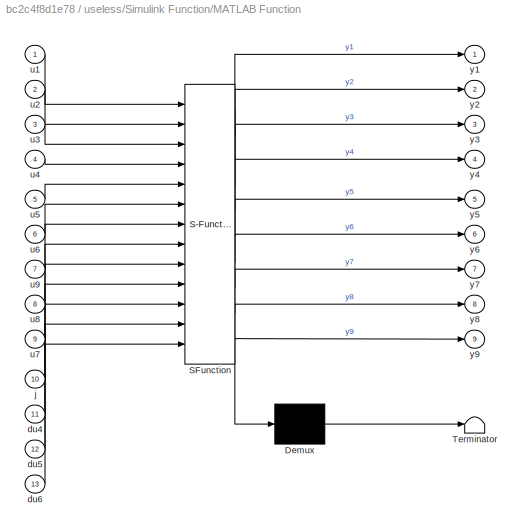
BLOCK [SubSystem] useless/Simulink Function/MATLAB Function
  ErrorFcn = Stateflow.Translate.translate
  PermitHierarchicalResolution = ExplicitOnly
  Ports = [13, 9]
  RequestExecContextInheritance = off
  SFBlockType = MATLAB Function
  TreatAsAtomicUnit = on
BLOCK [Demux] useless/Simulink Function/MATLAB Function/ Demux 
  Outputs = 1
  Ports = [1, 1]
BLOCK [S-Function] useless/Simulink Function/MATLAB Function/ SFunction 
  EnableBusSupport = on
  FunctionName = sf_sfun
  PortCounts = [13 10]
  Ports = [13, 10]
  SFcnIsStateOwnerBlock = off
  SFunctionDeploymentMode = off
  Tag = Stateflow S-Function 23
BLOCK [Terminator] useless/Simulink Function/MATLAB Function/ Terminator 
BLOCK [Inport] useless/Simulink Function/MATLAB Function/du4
  Port = 11
BLOCK [Inport] useless/Simulink Function/MATLAB Function/du5
  Port = 12
BLOCK [Inport] useless/Simulink Function/MATLAB Function/du6
  Port = 13
BLOCK [Inport] useless/Simulink Function/MATLAB Function/j
  Port = 10
BLOCK [Inport] useless/Simulink Function/MATLAB Function/u1
BLOCK [Inport] useless/Simulink Function/MATLAB Function/u2
  Port = 2
BLOCK [Inport] useless/Simulink Function/MATLAB Function/u3
  Port = 3
BLOCK [Inport] useless/Simulink Function/MATLAB Function/u4
  Port = 4
BLOCK [Inport] useless/Simulink Function/MATLAB Function/u5
  Port = 5
BLOCK [Inport] useless/Simulink Function/MATLAB Function/u6
  Port = 6
BLOCK [Inport] useless/Simulink Function/MATLAB Function/u7
  Port = 9
BLOCK [Inport] useless/Simulink Function/MATLAB Function/u8
  Port = 8
BLOCK [Inport] useless/Simulink Function/MATLAB Function/u9
  Port = 7
BLOCK [Outport] useless/Simulink Function/MATLAB Function/y1
BLOCK [Outport] useless/Simulink Function/MATLAB Function/y2
  Port = 2
BLOCK [Outport] useless/Simulink Function/MATLAB Function/y3
  Port = 3
BLOCK [Outport] useless/Simulink Function/MATLAB Function/y4
  Port = 4
BLOCK [Outport] useless/Simulink Function/MATLAB Function/y5
  Port = 5
BLOCK [Outport] useless/Simulink Function/MATLAB Function/y6
  Port = 6
BLOCK [Outport] useless/Simulink Function/MATLAB Function/y7
  Port = 7
BLOCK [Outport] useless/Simulink Function/MATLAB Function/y8
  Port = 8
BLOCK [Outport] useless/Simulink Function/MATLAB Function/y9
  Port = 9
BLOCK [Terminator] useless/Simulink Function/Terminator
BLOCK [Terminator] useless/Simulink Function/Terminator1
BLOCK [TriggerPort] useless/Simulink Function/f
  FunctionName = suktee
  FunctionVisibility = scoped
  IsSimulinkFunction = on
  Ports = []
  StatesWhenEnabling = held
  TriggerType = function-call
  VariantControl = (inherit)
BLOCK [ArgIn] useless/Simulink Function/u
  ArgumentName = u
  DisableCoverage = on
BLOCK [ArgIn] useless/Simulink Function/u1
  ArgumentName = u1
  DisableCoverage = on
  Port = 2
BLOCK [ArgOut] useless/Simulink Function/y1
  ArgumentName = y1
  DisableCoverage = on
BLOCK [ArgOut] useless/Simulink Function/y2
  ArgumentName = y2
  DisableCoverage = on
  Port = 2
BLOCK [ArgOut] useless/Simulink Function/y3
  ArgumentName = y3
  DisableCoverage = on
  Port = 3
BLOCK [ArgOut] useless/Simulink Function/y4
  ArgumentName = y4
  DisableCoverage = on
  Port = 4
BLOCK [ArgOut] useless/Simulink Function/y5
  ArgumentName = y5
  DisableCoverage = on
  Port = 5
BLOCK [ArgOut] useless/Simulink Function/y6
  ArgumentName = y6
  DisableCoverage = on
  Port = 6
BLOCK [ArgOut] useless/Simulink Function/y7
  ArgumentName = y7
  DisableCoverage = on
  Port = 7
BLOCK [ArgOut] useless/Simulink Function/y8
  ArgumentName = y8
  DisableCoverage = on
  Port = 8
BLOCK [ArgOut] useless/Simulink Function/y9
  ArgumentName = y9
  DisableCoverage = on
  Port = 9
BLOCK [SubSystem] useless/Simulink Function1
  Commented = on
  Ports = [3, 0, 0, 1]
  RequestExecContextInheritance = off
  TreatAsAtomicUnit = on
BLOCK [Inport] useless/Simulink Function1/Input
BLOCK [Inport] useless/Simulink Function1/Input1
  Port = 2
BLOCK [Inport] useless/Simulink Function1/Input2
  Port = 3
BLOCK [TriggerPort] useless/Simulink Function1/f
  FunctionName = meas
  FunctionVisibility = scoped
  IsSimulinkFunction = on
  Ports = []
  StatesWhenEnabling = held
  TriggerType = function-call
  VariantControl = (inherit)
BLOCK [ArgOut] useless/Simulink Function1/y1
  ArgumentName = y1
  DisableCoverage = on
BLOCK [ArgOut] useless/Simulink Function1/y2
  ArgumentName = y2
  DisableCoverage = on
  Port = 2
BLOCK [ArgOut] useless/Simulink Function1/y3
  ArgumentName = y3
  DisableCoverage = on
  Port = 3
BLOCK [SubSystem] useless/Simulink Function2
  Commented = on
  Ports = [3, 0, 0, 1]
  RequestExecContextInheritance = off
  TreatAsAtomicUnit = on
BLOCK [SubSystem] useless/Simulink Function2/MATLAB Function4
  ErrorFcn = Stateflow.Translate.translate
  PermitHierarchicalResolution = ExplicitOnly
  Ports = [3, 1]
  RequestExecContextInheritance = off
  SFBlockType = MATLAB Function
  TreatAsAtomicUnit = on
BLOCK [Demux] useless/Simulink Function2/MATLAB Function4/ Demux 
  Outputs = 1
  Ports = [1, 1]
BLOCK [S-Function] useless/Simulink Function2/MATLAB Function4/ SFunction 
  EnableBusSupport = on
  FunctionName = sf_sfun
  PortCounts = [3 2]
  Ports = [3, 2]
  SFcnIsStateOwnerBlock = off
  SFunctionDeploymentMode = off
  Tag = Stateflow S-Function 24
BLOCK [Terminator] useless/Simulink Function2/MATLAB Function4/ Terminator 
BLOCK [Outport] useless/Simulink Function2/MATLAB Function4/a
BLOCK [Inport] useless/Simulink Function2/MATLAB Function4/jx
BLOCK [Inport] useless/Simulink Function2/MATLAB Function4/jy
  Port = 2
BLOCK [Inport] useless/Simulink Function2/MATLAB Function4/jz
  Port = 3
BLOCK [TriggerPort] useless/Simulink Function2/jaba
  FunctionName = jaba
  FunctionVisibility = scoped
  IsSimulinkFunction = on
  Ports = []
  StatesWhenEnabling = held
  TriggerType = function-call
  VariantControl = (inherit)
BLOCK [Inport] useless/Simulink Function2/jx
BLOCK [Inport] useless/Simulink Function2/jy
  Port = 2
BLOCK [Inport] useless/Simulink Function2/jz
  Port = 3
BLOCK [ArgOut] useless/Simulink Function2/y
  ArgumentName = y
  DisableCoverage = on
BLOCK [SubSystem] useless/Simulink Function3
  Commented = on
  Ports = [1, 0, 0, 1]
  RequestExecContextInheritance = off
  TreatAsAtomicUnit = on
BLOCK [Demux] useless/Simulink Function3/Demux
  Outputs = 3
  Ports = [1, 3]
BLOCK [Inport] useless/Simulink Function3/Input
BLOCK [TriggerPort] useless/Simulink Function3/messi
  FunctionName = messi
  FunctionVisibility = scoped
  IsSimulinkFunction = on
  Ports = []
  StatesWhenEnabling = held
  TriggerType = function-call
  VariantControl = (inherit)
BLOCK [ArgOut] useless/Simulink Function3/y
  ArgumentName = y
  DisableCoverage = on
BLOCK [ArgOut] useless/Simulink Function3/y1
  ArgumentName = y1
  DisableCoverage = on
  Port = 2
BLOCK [ArgOut] useless/Simulink Function3/y2
  ArgumentName = y2
  DisableCoverage = on
  Port = 3
BLOCK [ToFile] useless/To File
  Commented = on
  Filename = Xout.mat
  MatrixName = Xout
  Ports = [1]
  SaveFormat = Timeseries
BLOCK [ToFile] useless/To File1
  Commented = on
  Filename = jaout.mat
  MatrixName = jaout
  Ports = [1]
  SaveFormat = Timeseries
BLOCK [ToWorkspace] useless/To Workspace
  Commented = on
  FixptAsFi = on
  MaxDataPoints = inf
  Ports = [1]
  SampleTime = -1
  SaveFormat = Timeseries
  VariableName = Xnine
BLOCK [ToWorkspace] useless/To Workspace1
  Commented = on
  FixptAsFi = on
  MaxDataPoints = inf
  Ports = [1]
  SampleTime = -1
  SaveFormat = Timeseries
  VariableName = Jaout
BLOCK [Math] useless/Transpose2
  Commented = on
  Operator = transpose
  Ports = [1, 1]
BLOCK [ZeroOrderHold] useless/Zero-Order Hold1
  Commented = on
  SampleTime = 0.01
BLOCK [Outport] useless/a
BLOCK [SubSystem] useless/euler rate1
  Commented = on
  ErrorFcn = Stateflow.Translate.translate
  PermitHierarchicalResolution = ExplicitOnly
  Ports = [1, 1]
  RequestExecContextInheritance = off
  SFBlockType = MATLAB Function
  TreatAsAtomicUnit = on
BLOCK [Demux] useless/euler rate1/ Demux 
  Outputs = 1
  Ports = [1, 1]
BLOCK [S-Function] useless/euler rate1/ SFunction 
  EnableBusSupport = on
  FunctionName = sf_sfun
  PortCounts = [1 2]
  Ports = [1, 2]
  SFcnIsStateOwnerBlock = off
  SFunctionDeploymentMode = off
  Tag = Stateflow S-Function 22
BLOCK [Terminator] useless/euler rate1/ Terminator 
BLOCK [Outport] useless/euler rate1/j
BLOCK [Inport] useless/euler rate1/u
BLOCK [SubSystem] useless/euler rate2
  Commented = on
  ErrorFcn = Stateflow.Translate.translate
  PermitHierarchicalResolution = ExplicitOnly
  Ports = [1, 1]
  RequestExecContextInheritance = off
  SFBlockType = MATLAB Function
  TreatAsAtomicUnit = on
BLOCK [Demux] useless/euler rate2/ Demux 
  Outputs = 1
  Ports = [1, 1]
BLOCK [S-Function] useless/euler rate2/ SFunction 
  EnableBusSupport = on
  FunctionName = sf_sfun
  PortCounts = [1 2]
  Ports = [1, 2]
  SFcnIsStateOwnerBlock = off
  SFunctionDeploymentMode = off
  Tag = Stateflow S-Function 25
BLOCK [Terminator] useless/euler rate2/ Terminator 
BLOCK [Outport] useless/euler rate2/j
BLOCK [Inport] useless/euler rate2/u
BLOCK [Inport] useless/u
  Port = 2
BLOCK [Inport] useless/u1
  Port = 6
BLOCK [Inport] useless/u2
  Port = 7
BLOCK [Inport] useless/y1
  Port = 5
ANNOTATION (root): Estimation
ANNOTATION (root): controller & quadrotor model
ANNOTATION (root): measurement model
ANNOTATION Quadrotor: Gravity
ANNOTATION Quadrotor: Quadrotor's Thrust
ANNOTATION hover control/Attitude Control (Quaternion)1: Quaternion-based Attitude Control Roll-Pitch-Yaw Attitude Control
LINE Demux1:1 -> Display2:1
LINE Demux1:2 -> Display3:1
LINE Extended Kalman Filter:1 -> Demux1:1
LINE From6:1 -> simout plot:1
LINE From7:1 -> simout plot:2
LINE Mux3:1 -> Zero-Order Hold:1
NET Quadrotor/Constant:1 -> Quadrotor/Mux:1, Quadrotor/Mux:2
LINE Quadrotor/Dynamics Model/Initial Angular Velocity:1 -> Quadrotor/Dynamics Model/Integrator3:2
LINE Quadrotor/Dynamics Model/Initial Linear Velocity:1 -> Quadrotor/Dynamics Model/Integrator4:2
NET Quadrotor/Dynamics Model/Integrator3:1 -> Quadrotor/Dynamics Model/Orientation Dynamics:2, Quadrotor/Dynamics Model/w:1
LINE Quadrotor/Dynamics Model/Integrator4:1 -> Quadrotor/Dynamics Model/v:1
NET Quadrotor/Dynamics Model/Orientation Dynamics/Body Inertia Matrix:1 -> Quadrotor/Dynamics Model/Orientation Dynamics/Matrix Multiply:1, Quadrotor/Dynamics Model/Orientation Dynamics/Product:1
LINE Quadrotor/Dynamics Model/Orientation Dynamics/Cross Product:1 -> Quadrotor/Dynamics Model/Orientation Dynamics/Sum:2
LINE Quadrotor/Dynamics Model/Orientation Dynamics/Matrix Multiply:1 -> Quadrotor/Dynamics Model/Orientation Dynamics/Cross Product:2
LINE Quadrotor/Dynamics Model/Orientation Dynamics/Product:1 -> Quadrotor/Dynamics Model/Orientation Dynamics/dw:1
LINE Quadrotor/Dynamics Model/Orientation Dynamics/Sum:1 -> Quadrotor/Dynamics Model/Orientation Dynamics/Product:2
LINE Quadrotor/Dynamics Model/Orientation Dynamics/tau:1 -> Quadrotor/Dynamics Model/Orientation Dynamics/Sum:1
NET Quadrotor/Dynamics Model/Orientation Dynamics/w:1 -> Quadrotor/Dynamics Model/Orientation Dynamics/Cross Product:1, Quadrotor/Dynamics Model/Orientation Dynamics/Matrix Multiply:2
LINE Quadrotor/Dynamics Model/Orientation Dynamics:1 -> Quadrotor/Dynamics Model/Integrator3:1
LINE Quadrotor/Dynamics Model/Position Dynamics/Mass:1 -> Quadrotor/Dynamics Model/Position Dynamics/Product1:2
LINE Quadrotor/Dynamics Model/Position Dynamics/Product1:1 -> Quadrotor/Dynamics Model/Position Dynamics/dv:1
LINE Quadrotor/Dynamics Model/Position Dynamics/f:1 -> Quadrotor/Dynamics Model/Position Dynamics/Product1:1
NET Quadrotor/Dynamics Model/Position Dynamics:1 -> Quadrotor/Dynamics Model/Integrator4:1, Quadrotor/Dynamics Model/a:1
LINE Quadrotor/Dynamics Model/f:1 -> Quadrotor/Dynamics Model/Position Dynamics:1
LINE Quadrotor/Dynamics Model/tau:1 -> Quadrotor/Dynamics Model/Orientation Dynamics:1
NET Quadrotor/Dynamics Model:1 -> Quadrotor/KInematics Model :1, Quadrotor/w:1
NET Quadrotor/Dynamics Model:2 -> Quadrotor/KInematics Model :2, Quadrotor/v:1
LINE Quadrotor/Dynamics Model:3 -> Quadrotor/a:1
LINE Quadrotor/Gain:1 -> Quadrotor/r:1
LINE Quadrotor/KInematics Model /Initial Orientation:1 -> Quadrotor/KInematics Model /Integrator1:2
LINE Quadrotor/KInematics Model /Initial Position:1 -> Quadrotor/KInematics Model /Integrator2:2
LINE Quadrotor/KInematics Model /Integrator1:1 -> Quadrotor/KInematics Model /Vector Normalization:1
LINE Quadrotor/KInematics Model /Integrator2:1 -> Quadrotor/KInematics Model /p:1
LINE Quadrotor/KInematics Model /Orientation Kinematics/Cross Product:1 -> Quadrotor/KInematics Model /Orientation Kinematics/Sum:2
LINE Quadrotor/KInematics Model /Orientation Kinematics/Demux:1 -> Quadrotor/KInematics Model /Orientation Kinematics/Product:1
LINE Quadrotor/KInematics Model /Orientation Kinematics/Demux:2 -> Quadrotor/KInematics Model /Orientation Kinematics/Mux:1
LINE Quadrotor/KInematics Model /Orientation Kinematics/Demux:3 -> Quadrotor/KInematics Model /Orientation Kinematics/Mux:2
LINE Quadrotor/KInematics Model /Orientation Kinematics/Demux:4 -> Quadrotor/KInematics Model /Orientation Kinematics/Mux:3
LINE Quadrotor/KInematics Model /Orientation Kinematics/Dot Product:1 -> Quadrotor/KInematics Model /Orientation Kinematics/Gain1:1
LINE Quadrotor/KInematics Model /Orientation Kinematics/Gain1:1 -> Quadrotor/KInematics Model /Orientation Kinematics/Mux1:1
LINE Quadrotor/KInematics Model /Orientation Kinematics/Mux1:1 -> Quadrotor/KInematics Model /Orientation Kinematics/dq:1
NET Quadrotor/KInematics Model /Orientation Kinematics/Mux:1 -> Quadrotor/KInematics Model /Orientation Kinematics/Cross Product:1, Quadrotor/KInematics Model /Orientation Kinematics/Dot Product:1
LINE Quadrotor/KInematics Model /Orientation Kinematics/Product:1 -> Quadrotor/KInematics Model /Orientation Kinematics/Sum:1
LINE Quadrotor/KInematics Model /Orientation Kinematics/Sum:1 -> Quadrotor/KInematics Model /Orientation Kinematics/Mux1:2
LINE Quadrotor/KInematics Model /Orientation Kinematics/q:1 -> Quadrotor/KInematics Model /Orientation Kinematics/Demux:1
NET Quadrotor/KInematics Model /Orientation Kinematics/w:1 -> Quadrotor/KInematics Model /Orientation Kinematics/Cross Product:2, Quadrotor/KInematics Model /Orientation Kinematics/Dot Product:2, Quadrotor/KInematics Model /Orientation Kinematics/Product:2
LINE Quadrotor/KInematics Model /Orientation Kinematics:1 -> Quadrotor/KInematics Model /Integrator1:1
LINE Quadrotor/KInematics Model /Position Kinematics/v:1 -> Quadrotor/KInematics Model /Position Kinematics/dp:1
LINE Quadrotor/KInematics Model /Position Kinematics:1 -> Quadrotor/KInematics Model /Integrator2:1
LINE Quadrotor/KInematics Model /Vector Normalization/Dot Product1:1 -> Quadrotor/KInematics Model /Vector Normalization/Sqrt:1
LINE Quadrotor/KInematics Model /Vector Normalization/Product3:1 -> Quadrotor/KInematics Model /Vector Normalization/v':1
LINE Quadrotor/KInematics Model /Vector Normalization/Sqrt:1 -> Quadrotor/KInematics Model /Vector Normalization/Product3:2
NET Quadrotor/KInematics Model /Vector Normalization/v:1 -> Quadrotor/KInematics Model /Vector Normalization/Dot Product1:1, Quadrotor/KInematics Model /Vector Normalization/Dot Product1:2, Quadrotor/KInematics Model /Vector Normalization/Product3:1
NET Quadrotor/KInematics Model /Vector Normalization:1 -> Quadrotor/KInematics Model /Orientation Kinematics:2, Quadrotor/KInematics Model /q:1
LINE Quadrotor/KInematics Model /v:1 -> Quadrotor/KInematics Model /Position Kinematics:1
LINE Quadrotor/KInematics Model /w:1 -> Quadrotor/KInematics Model /Orientation Kinematics:1
NET Quadrotor/KInematics Model :1 -> Quadrotor/MATLAB Function:1, Quadrotor/Transpose1:1
LINE Quadrotor/KInematics Model :2 -> Quadrotor/p:1
LINE Quadrotor/MATLAB Function:1 -> Quadrotor/Product:1
LINE Quadrotor/Mass:1 -> Quadrotor/Product1:1
LINE Quadrotor/Mux:1 -> Quadrotor/Product:2
LINE Quadrotor/Product1:1 -> Quadrotor/Sum:2
LINE Quadrotor/Product:1 -> Quadrotor/Sum:1
LINE Quadrotor/Quaternions to Rotation Angles:1 -> Quadrotor/Gain:1
NET Quadrotor/Sum:1 -> Quadrotor/Dynamics Model:2, Quadrotor/Scope:1
LINE Quadrotor/Transpose1:1 -> Quadrotor/Quaternions to Rotation Angles:1
LINE Quadrotor/f:1 -> Quadrotor/Mux:3
LINE Quadrotor/gravity:1 -> Quadrotor/Product1:2
LINE Quadrotor/quat2Rotm/Constant:1 -> Quadrotor/quat2Rotm/Product1:2
NET Quadrotor/quat2Rotm/Demux:1 -> Quadrotor/quat2Rotm/Product2:1, Quadrotor/quat2Rotm/Product2:2
LINE Quadrotor/quat2Rotm/Demux:2 -> Quadrotor/quat2Rotm/Mux:1
LINE Quadrotor/quat2Rotm/Demux:3 -> Quadrotor/quat2Rotm/Mux:2
LINE Quadrotor/quat2Rotm/Demux:4 -> Quadrotor/quat2Rotm/Mux:3
NET Quadrotor/quat2Rotm/Mux:1 -> Quadrotor/quat2Rotm/Product3:1, Quadrotor/quat2Rotm/Skew Operator:1, Quadrotor/quat2Rotm/Transpose:1
LINE Quadrotor/quat2Rotm/Product1:1 -> Quadrotor/quat2Rotm/Sum:1
LINE Quadrotor/quat2Rotm/Product2:1 -> Quadrotor/quat2Rotm/Product1:1
LINE Quadrotor/quat2Rotm/Product3:1 -> Quadrotor/quat2Rotm/Sum1:2
LINE Quadrotor/quat2Rotm/Product4:1 -> Quadrotor/quat2Rotm/Sum1:1
NET Quadrotor/quat2Rotm/Skew Operator/Constant:1 -> Quadrotor/quat2Rotm/Skew Operator/Mux1:1, Quadrotor/quat2Rotm/Skew Operator/Mux2:2, Quadrotor/quat2Rotm/Skew Operator/Mux3:3
LINE Quadrotor/quat2Rotm/Skew Operator/Demux1:1 -> Quadrotor/quat2Rotm/Skew Operator/Mux2:3
LINE Quadrotor/quat2Rotm/Skew Operator/Demux1:2 -> Quadrotor/quat2Rotm/Skew Operator/Mux3:1
LINE Quadrotor/quat2Rotm/Skew Operator/Demux1:3 -> Quadrotor/quat2Rotm/Skew Operator/Mux1:2
LINE Quadrotor/quat2Rotm/Skew Operator/Demux2:1 -> Quadrotor/quat2Rotm/Skew Operator/Mux3:2
LINE Quadrotor/quat2Rotm/Skew Operator/Demux2:2 -> Quadrotor/quat2Rotm/Skew Operator/Mux1:3
LINE Quadrotor/quat2Rotm/Skew Operator/Demux2:3 -> Quadrotor/quat2Rotm/Skew Operator/Mux2:1
LINE Quadrotor/quat2Rotm/Skew Operator/Gain1:1 -> Quadrotor/quat2Rotm/Skew Operator/Demux2:1
LINE Quadrotor/quat2Rotm/Skew Operator/Matrix Concatenate:1 -> Quadrotor/quat2Rotm/Skew Operator/S:1
LINE Quadrotor/quat2Rotm/Skew Operator/Mux1:1 -> Quadrotor/quat2Rotm/Skew Operator/Matrix Concatenate:1
LINE Quadrotor/quat2Rotm/Skew Operator/Mux2:1 -> Quadrotor/quat2Rotm/Skew Operator/Matrix Concatenate:2
LINE Quadrotor/quat2Rotm/Skew Operator/Mux3:1 -> Quadrotor/quat2Rotm/Skew Operator/Matrix Concatenate:3
NET Quadrotor/quat2Rotm/Skew Operator/v:1 -> Quadrotor/quat2Rotm/Skew Operator/Demux1:1, Quadrotor/quat2Rotm/Skew Operator/Gain1:1
LINE Quadrotor/quat2Rotm/Skew Operator:1 -> Quadrotor/quat2Rotm/Sum:2
LINE Quadrotor/quat2Rotm/Sum1:1 -> Quadrotor/quat2Rotm/R:1
NET Quadrotor/quat2Rotm/Sum:1 -> Quadrotor/quat2Rotm/Product4:1, Quadrotor/quat2Rotm/Product4:2
LINE Quadrotor/quat2Rotm/Transpose:1 -> Quadrotor/quat2Rotm/Product3:2
LINE Quadrotor/quat2Rotm/q:1 -> Quadrotor/quat2Rotm/Demux:1
NET Quadrotor/quat2Rotm2/Demux:1 -> Quadrotor/quat2Rotm2/Product1:1, Quadrotor/quat2Rotm2/Product1:2
LINE Quadrotor/quat2Rotm2/Demux:2 -> Quadrotor/quat2Rotm2/Mux:1
LINE Quadrotor/quat2Rotm2/Demux:3 -> Quadrotor/quat2Rotm2/Mux:2
LINE Quadrotor/quat2Rotm2/Demux:4 -> Quadrotor/quat2Rotm2/Mux:3
LINE Quadrotor/quat2Rotm2/Identity Matrix:1 -> Quadrotor/quat2Rotm2/Product:2
LINE Quadrotor/quat2Rotm2/MATLAB Function:1 -> Quadrotor/quat2Rotm2/Sum1:2
LINE Quadrotor/quat2Rotm2/MatrixMultiply1:1 -> Quadrotor/quat2Rotm2/Sum:1
LINE Quadrotor/quat2Rotm2/MatrixMultiply:1 -> Quadrotor/quat2Rotm2/Sum:2
NET Quadrotor/quat2Rotm2/Mux:1 -> Quadrotor/quat2Rotm2/MATLAB Function:1, Quadrotor/quat2Rotm2/MatrixMultiply:1, Quadrotor/quat2Rotm2/Transpose:1
LINE Quadrotor/quat2Rotm2/Product1:1 -> Quadrotor/quat2Rotm2/Product:1
LINE Quadrotor/quat2Rotm2/Product:1 -> Quadrotor/quat2Rotm2/Sum1:1
NET Quadrotor/quat2Rotm2/Sum1:1 -> Quadrotor/quat2Rotm2/MatrixMultiply1:1, Quadrotor/quat2Rotm2/MatrixMultiply1:2
LINE Quadrotor/quat2Rotm2/Sum:1 -> Quadrotor/quat2Rotm2/R:1
LINE Quadrotor/quat2Rotm2/Transpose:1 -> Quadrotor/quat2Rotm2/MatrixMultiply:2
LINE Quadrotor/quat2Rotm2/q:1 -> Quadrotor/quat2Rotm2/Demux:1
LINE Quadrotor/tau:1 -> Quadrotor/Dynamics Model:1
NET Quadrotor:1 -> Goto5:1, Ultrasonic sensor:1
NET Quadrotor:2 -> Goto6:1, Ultrasonic sensor:2, direct noise:1, magnetometer:1
LINE Quadrotor:3 -> Terminator3:1
LINE Quadrotor:4 -> gyroscope:1
LINE Quadrotor:5 -> hover control:6
LINE Subsystem1/Demux1:1 -> Subsystem1/Terminator:1
LINE Subsystem1/Demux1:2 -> Subsystem1/Terminator2:1
LINE Subsystem1/Demux1:3 -> Subsystem1/position kalman:1
LINE Subsystem1/Demux1:4 -> Subsystem1/Terminator3:1
LINE Subsystem1/Demux1:5 -> Subsystem1/Terminator5:1
LINE Subsystem1/Demux1:6 -> Subsystem1/Terminator6:1
LINE Subsystem1/Demux1:7 -> Subsystem1/Terminator9:1
LINE Subsystem1/Demux1:8 -> Subsystem1/Terminator7:1
LINE Subsystem1/Demux1:9 -> Subsystem1/Terminator8:1
LINE Subsystem1/Subsystem/A1:1 -> Subsystem1/Subsystem/Kalman Filter:5
LINE Subsystem1/Subsystem/B1:1 -> Subsystem1/Subsystem/Kalman Filter:6
NET Subsystem1/Subsystem/Constant2:1 -> Subsystem1/Subsystem/Kalman Filter:3, Subsystem1/Subsystem/Kalman Filter:4
LINE Subsystem1/Subsystem/D1:1 -> Subsystem1/Subsystem/Kalman Filter:8
LINE Subsystem1/Subsystem/Demux:1 -> Subsystem1/Subsystem/Terminator1:1
LINE Subsystem1/Subsystem/Demux:2 -> Subsystem1/Subsystem/c:2
LINE Subsystem1/Subsystem/Demux:3 -> Subsystem1/Subsystem/c:3
LINE Subsystem1/Subsystem/Kalman Filter:1 -> Subsystem1/Subsystem/xhat:1
NET Subsystem1/Subsystem/RotZYX:1 -> Subsystem1/Subsystem/Demux:1, Subsystem1/Subsystem/Transpose2:1
LINE Subsystem1/Subsystem/Transpose2:1 -> Subsystem1/Subsystem/euler:1
LINE Subsystem1/Subsystem/a_G:1 -> Subsystem1/Subsystem/y:1
NET Subsystem1/Subsystem/c/Constant1:1 -> Subsystem1/Subsystem/c/Mux:1, Subsystem1/Subsystem/c/Mux:10, Subsystem1/Subsystem/c/Mux:11, Subsystem1/Subsystem/c/Mux:13, Subsystem1/Subsystem/c/Mux:14, Subsystem1/Subsystem/c/Mux:15, Subsystem1/Subsystem/c/Mux:16, Subsystem1/Subsystem/c/Mux:17, Subsystem1/Subsystem/c/Mux:18, Subsystem1/Subsystem/c/Mux:19, Subsystem1/Subsystem/c/Mux:2, Subsystem1/Subsystem/c/Mux:20, Subsystem1/Subsystem/c/Mux:21, Subsystem1/Subsystem/c/Mux:22, Subsystem1/Subsystem/c/Mux:23, Subsystem1/Subsystem/c/Mux:24, Subsystem1/Subsystem/c/Mux:28, Subsystem1/Subsystem/c/Mux:3, Subsystem1/Subsystem/c/Mux:32, Subsystem1/Subsystem/c/Mux:36, Subsystem1/Subsystem/c/Mux:4, Subsystem1/Subsystem/c/Mux:5, Subsystem1/Subsystem/c/Mux:6, Subsystem1/Subsystem/c/Mux:7, Subsystem1/Subsystem/c/Mux:8, Subsystem1/Subsystem/c/Mux:9
LINE Subsystem1/Subsystem/c/Constant:1 -> Subsystem1/Subsystem/c/Divide1:1
LINE Subsystem1/Subsystem/c/Cos1:1 -> Subsystem1/Subsystem/c/Divide:2
LINE Subsystem1/Subsystem/c/Cos:1 -> Subsystem1/Subsystem/c/Divide:1
LINE Subsystem1/Subsystem/c/Divide1:1 -> Subsystem1/Subsystem/c/Mux:12
LINE Subsystem1/Subsystem/c/Divide:1 -> Subsystem1/Subsystem/c/Divide1:2
LINE Subsystem1/Subsystem/c/In2:1 -> Subsystem1/Subsystem/c/Cos:1
LINE Subsystem1/Subsystem/c/In3:1 -> Subsystem1/Subsystem/c/Cos1:1
LINE Subsystem1/Subsystem/c/MATLAB Function:1 -> Subsystem1/Subsystem/c/Mux:25
LINE Subsystem1/Subsystem/c/MATLAB Function:2 -> Subsystem1/Subsystem/c/Mux:26
LINE Subsystem1/Subsystem/c/MATLAB Function:3 -> Subsystem1/Subsystem/c/Mux:27
LINE Subsystem1/Subsystem/c/MATLAB Function:4 -> Subsystem1/Subsystem/c/Mux:29
LINE Subsystem1/Subsystem/c/MATLAB Function:5 -> Subsystem1/Subsystem/c/Mux:30
LINE Subsystem1/Subsystem/c/MATLAB Function:6 -> Subsystem1/Subsystem/c/Mux:31
LINE Subsystem1/Subsystem/c/MATLAB Function:7 -> Subsystem1/Subsystem/c/Mux:33
LINE Subsystem1/Subsystem/c/MATLAB Function:8 -> Subsystem1/Subsystem/c/Mux:34
LINE Subsystem1/Subsystem/c/MATLAB Function:9 -> Subsystem1/Subsystem/c/Mux:35
LINE Subsystem1/Subsystem/c/Mux:1 -> Subsystem1/Subsystem/c/Reshape:1
LINE Subsystem1/Subsystem/c/Reshape:1 -> Subsystem1/Subsystem/c/c:1
LINE Subsystem1/Subsystem/c/y:1 -> Subsystem1/Subsystem/c/MATLAB Function:1
LINE Subsystem1/Subsystem/c:1 -> Subsystem1/Subsystem/Kalman Filter:7
NET Subsystem1/Subsystem/euler:1 -> Subsystem1/Subsystem/c:1, Subsystem1/Subsystem/u:1
LINE Subsystem1/Subsystem/p:1 -> Subsystem1/Subsystem/y:2
NET Subsystem1/Subsystem/u/Constant1:1 -> Subsystem1/Subsystem/u/Mux:1, Subsystem1/Subsystem/u/Mux:10, Subsystem1/Subsystem/u/Mux:11, Subsystem1/Subsystem/u/Mux:13, Subsystem1/Subsystem/u/Mux:2, Subsystem1/Subsystem/u/Mux:4, Subsystem1/Subsystem/u/Mux:5, Subsystem1/Subsystem/u/Mux:7, Subsystem1/Subsystem/u/Mux:8
NET Subsystem1/Subsystem/u/Constant:1 -> Subsystem1/Subsystem/u/Divide1:1, Subsystem1/Subsystem/u/Square:1
LINE Subsystem1/Subsystem/u/Divide1:1 -> Subsystem1/Subsystem/u/Mux:6
LINE Subsystem1/Subsystem/u/Divide:1 -> Subsystem1/Subsystem/u/Mux:3
LINE Subsystem1/Subsystem/u/Gain:1 -> Subsystem1/Subsystem/u/Divide:1
LINE Subsystem1/Subsystem/u/Mux:1 -> Subsystem1/Subsystem/u/Reshape:1
LINE Subsystem1/Subsystem/u/Reshape:1 -> Subsystem1/Subsystem/u/u:1
LINE Subsystem1/Subsystem/u/Square:1 -> Subsystem1/Subsystem/u/Gain:1
NET Subsystem1/Subsystem/u/Sum:1 -> Subsystem1/Subsystem/u/Divide1:2, Subsystem1/Subsystem/u/Divide:2, Subsystem1/Subsystem/u/Mux:9
NET Subsystem1/Subsystem/u/eul:1 -> Subsystem1/Subsystem/u/g get:1, Subsystem1/Subsystem/u/z get:1
LINE Subsystem1/Subsystem/u/g get:1 -> Subsystem1/Subsystem/u/Mux:12
LINE Subsystem1/Subsystem/u/g:1 -> Subsystem1/Subsystem/u/Sum:2
LINE Subsystem1/Subsystem/u/z get:1 -> Subsystem1/Subsystem/u/Sum:1
LINE Subsystem1/Subsystem/u:1 -> Subsystem1/Subsystem/Kalman Filter:1
NET Subsystem1/Subsystem/y/Constant:1 -> Subsystem1/Subsystem/y/Mux:1, Subsystem1/Subsystem/y/Mux:2
LINE Subsystem1/Subsystem/y/Demux1:1 -> Subsystem1/Subsystem/y/Terminator2:1
LINE Subsystem1/Subsystem/y/Demux1:2 -> Subsystem1/Subsystem/y/Terminator3:1
LINE Subsystem1/Subsystem/y/Demux1:3 -> Subsystem1/Subsystem/y/Mux:4
LINE Subsystem1/Subsystem/y/Demux2:1 -> Subsystem1/Subsystem/y/Terminator4:1
LINE Subsystem1/Subsystem/y/Demux2:2 -> Subsystem1/Subsystem/y/Terminator5:1
LINE Subsystem1/Subsystem/y/Demux:1 -> Subsystem1/Subsystem/y/Terminator:1
LINE Subsystem1/Subsystem/y/Demux:2 -> Subsystem1/Subsystem/y/Terminator1:1
LINE Subsystem1/Subsystem/y/Demux:3 -> Subsystem1/Subsystem/y/Mux:3
LINE Subsystem1/Subsystem/y/MATLAB Function:1 -> Subsystem1/Subsystem/y/Demux2:1
LINE Subsystem1/Subsystem/y/Mux:1 -> Subsystem1/Subsystem/y/y:1
LINE Subsystem1/Subsystem/y/a:1 -> Subsystem1/Subsystem/y/Demux:1
LINE Subsystem1/Subsystem/y/p:1 -> Subsystem1/Subsystem/y/Demux1:1
LINE Subsystem1/Subsystem/y:1 -> Subsystem1/Subsystem/Kalman Filter:2
LINE Subsystem1/Subsystem:1 -> Subsystem1/Demux1:1
LINE Subsystem1/r_est:1 -> Subsystem1/Subsystem:3
LINE Subsystem1/z_a:1 -> Subsystem1/Subsystem:2
LINE Subsystem1/z_u:1 -> Subsystem1/Subsystem:1
LINE Subsystem1:1 -> hover control:4
LINE Ultrasonic sensor/Demux:1 -> Ultrasonic sensor/Terminator:1
LINE Ultrasonic sensor/Demux:2 -> Ultrasonic sensor/MATLAB Function:1
LINE Ultrasonic sensor/Demux:3 -> Ultrasonic sensor/MATLAB Function:2
LINE Ultrasonic sensor/Divide:1 -> Ultrasonic sensor/Sum:1
LINE Ultrasonic sensor/MATLAB Function:1 -> Ultrasonic sensor/Divide:2
LINE Ultrasonic sensor/Random Number1:1 -> Ultrasonic sensor/Sum:2
LINE Ultrasonic sensor/Sum:1 -> Ultrasonic sensor/z_u:1
LINE Ultrasonic sensor/p:1 -> Ultrasonic sensor/Divide:1
LINE Ultrasonic sensor/r:1 -> Ultrasonic sensor/Demux:1
LINE Ultrasonic sensor:1 -> Subsystem1:1
LINE Zero-Order Hold:1 -> Extended Kalman Filter:1
LINE accelerometer/Demux3:1 -> accelerometer/Mux1:1
LINE accelerometer/Demux3:2 -> accelerometer/Mux1:2
LINE accelerometer/Demux3:3 -> accelerometer/Sum1:1
LINE accelerometer/Divide:1 -> accelerometer/Demux3:1
LINE accelerometer/Mux1:1 -> accelerometer/z_a:1
LINE accelerometer/Random Number2:1 -> accelerometer/Sum1:2
LINE accelerometer/Sum1:1 -> accelerometer/Mux1:3
LINE accelerometer/mass:1 -> accelerometer/Divide:2
LINE accelerometer/tau:1 -> accelerometer/Divide:1
LINE accelerometer:1 -> Subsystem1:2
LINE desired position:1 -> hover control:5
LINE desired yaw:1 -> hover control:3
LINE direct noise/Demux:1 -> direct noise/Sum1:2
LINE direct noise/Demux:2 -> direct noise/Mux:2
LINE direct noise/Demux:3 -> direct noise/Mux:3
LINE direct noise/Mux:1 -> direct noise/ZYX:1
LINE direct noise/Random Number2:1 -> direct noise/Sum1:1
LINE direct noise/Sum1:1 -> direct noise/Mux:1
LINE direct noise/r:1 -> direct noise/Demux:1
LINE direct noise:1 -> Scope1:1
LINE gyroscope/Demux3:1 -> gyroscope/Mux1:1
LINE gyroscope/Demux3:2 -> gyroscope/Mux1:2
LINE gyroscope/Demux3:3 -> gyroscope/Sum1:1
LINE gyroscope/Mux1:1 -> gyroscope/z_w:1
LINE gyroscope/Random Number2:1 -> gyroscope/Sum1:2
LINE gyroscope/Sum1:1 -> gyroscope/Mux1:3
LINE gyroscope/w:1 -> gyroscope/Demux3:1
LINE gyroscope:1 -> orientation estimator:2
LINE hover control/Attitude Control (Quaternion)1/Demux:1 -> hover control/Attitude Control (Quaternion)1/Terminator:1
LINE hover control/Attitude Control (Quaternion)1/Demux:2 -> hover control/Attitude Control (Quaternion)1/Mux:1
LINE hover control/Attitude Control (Quaternion)1/Demux:3 -> hover control/Attitude Control (Quaternion)1/Mux:2
LINE hover control/Attitude Control (Quaternion)1/Demux:4 -> hover control/Attitude Control (Quaternion)1/Mux:3
LINE hover control/Attitude Control (Quaternion)1/Gain1:1 -> hover control/Attitude Control (Quaternion)1/Sum:1
LINE hover control/Attitude Control (Quaternion)1/Gain2:1 -> hover control/Attitude Control (Quaternion)1/Sum:2
NET hover control/Attitude Control (Quaternion)1/Mux:1 -> hover control/Attitude Control (Quaternion)1/Display:1, hover control/Attitude Control (Quaternion)1/Gain1:1
LINE hover control/Attitude Control (Quaternion)1/Quaternion Conjugate:1 -> hover control/Attitude Control (Quaternion)1/Quaternion Multiplication:2
LINE hover control/Attitude Control (Quaternion)1/Quaternion Multiplication:1 -> hover control/Attitude Control (Quaternion)1/Demux:1
LINE hover control/Attitude Control (Quaternion)1/Sum:1 -> hover control/Attitude Control (Quaternion)1/tau:1
LINE hover control/Attitude Control (Quaternion)1/q:1 -> hover control/Attitude Control (Quaternion)1/Quaternion Conjugate:1
LINE hover control/Attitude Control (Quaternion)1/q_ref:1 -> hover control/Attitude Control (Quaternion)1/Quaternion Multiplication:1
LINE hover control/Attitude Control (Quaternion)1/w_e:1 -> hover control/Attitude Control (Quaternion)1/Gain2:1
LINE hover control/Attitude Control (Quaternion)1:1 -> hover control/MATLAB Function:1
LINE hover control/Demux1:1 -> hover control/Terminator2:1
LINE hover control/Demux1:2 -> hover control/Terminator1:1
NET hover control/Demux1:3 -> hover control/Display7:1, hover control/Sum:2
LINE hover control/Demux:1 -> hover control/Mux:3
LINE hover control/Demux:2 -> hover control/Mux:2
LINE hover control/Demux:3 -> hover control/Mux:1
LINE hover control/Desire Angle/Constant:1 -> hover control/Desire Angle/Switch:3
NET hover control/Desire Angle/Cos1:1 -> hover control/Desire Angle/Product9:2, hover control/Desire Angle/Sum2:2
NET hover control/Desire Angle/Cos:1 -> hover control/Desire Angle/Product3:2, hover control/Desire Angle/Product4:2
LINE hover control/Desire Angle/Demux1:1 -> hover control/Desire Angle/Product12:1
LINE hover control/Desire Angle/Demux1:2 -> hover control/Desire Angle/Product7:1
LINE hover control/Desire Angle/Demux1:3 -> hover control/Desire Angle/Terminator1:1
LINE hover control/Desire Angle/Demux:1 -> hover control/Desire Angle/Product:1
LINE hover control/Desire Angle/Demux:2 -> hover control/Desire Angle/Product2:1
LINE hover control/Desire Angle/Demux:3 -> hover control/Desire Angle/Terminator:1
LINE hover control/Desire Angle/MATLAB Function2:1 -> hover control/Desire Angle/RPY:1
LINE hover control/Desire Angle/Mux1:1 -> hover control/Desire Angle/MATLAB Function2:1
LINE hover control/Desire Angle/Mux2:1 -> hover control/Desire Angle/Switch:1
LINE hover control/Desire Angle/Mux:1 -> hover control/Desire Angle/Mux1:1
NET hover control/Desire Angle/Product12:1 -> hover control/Desire Angle/Product9:1, hover control/Desire Angle/Sum2:1
LINE hover control/Desire Angle/Product1:1 -> hover control/Desire Angle/Sum:1
NET hover control/Desire Angle/Product2:1 -> hover control/Desire Angle/Product3:1, hover control/Desire Angle/Product5:1
LINE hover control/Desire Angle/Product3:1 -> hover control/Desire Angle/Sum:2
LINE hover control/Desire Angle/Product4:1 -> hover control/Desire Angle/Sum1:1
LINE hover control/Desire Angle/Product5:1 -> hover control/Desire Angle/Sum1:2
LINE hover control/Desire Angle/Product6:1 -> hover control/Desire Angle/Mux2:1
LINE hover control/Desire Angle/Product7:1 -> hover control/Desire Angle/Product8:1
LINE hover control/Desire Angle/Product8:1 -> hover control/Desire Angle/Sum3:1
LINE hover control/Desire Angle/Product9:1 -> hover control/Desire Angle/Sum3:2
NET hover control/Desire Angle/Product:1 -> hover control/Desire Angle/Product1:1, hover control/Desire Angle/Product4:1
NET hover control/Desire Angle/Sin1:1 -> hover control/Desire Angle/Product6:2, hover control/Desire Angle/Product8:2
NET hover control/Desire Angle/Sin:1 -> hover control/Desire Angle/Product1:2, hover control/Desire Angle/Product5:2
LINE hover control/Desire Angle/Sum1:1 -> hover control/Desire Angle/Mux:2
LINE hover control/Desire Angle/Sum2:1 -> hover control/Desire Angle/Product6:1
LINE hover control/Desire Angle/Sum3:1 -> hover control/Desire Angle/Mux2:2
LINE hover control/Desire Angle/Sum:1 -> hover control/Desire Angle/Mux:1
NET hover control/Desire Angle/a:1 -> hover control/Desire Angle/Demux1:1, hover control/Desire Angle/Demux:1
NET hover control/Desire Angle/gravity1:1 -> hover control/Desire Angle/Product12:2, hover control/Desire Angle/Product7:2, hover control/Desire Angle/Switch:2
NET hover control/Desire Angle/gravity:1 -> hover control/Desire Angle/Product2:2, hover control/Desire Angle/Product:2
NET hover control/Desire Angle/r_z:1 -> hover control/Desire Angle/Cos1:1, hover control/Desire Angle/Cos:1, hover control/Desire Angle/Mux1:2, hover control/Desire Angle/Sin1:1, hover control/Desire Angle/Sin:1
NET hover control/Desire Angle:1 -> hover control/Demux:1, hover control/Display:1
LINE hover control/Gain1:1 -> hover control/f:1
LINE hover control/MATLAB Function:1 -> hover control/tau:1
LINE hover control/Mux:1 -> hover control/Rotation Angles to Quaternions:1
LINE hover control/Rotation Angles to Quaternions1:1 -> hover control/Transpose:1
LINE hover control/Rotation Angles to Quaternions:1 -> hover control/Attitude Control (Quaternion)1:3
LINE hover control/Sum:1 -> hover control/Gain1:1
LINE hover control/Transpose:1 -> hover control/Attitude Control (Quaternion)1:1
LINE hover control/gravity:1 -> hover control/Sum:1
LINE hover control/p:1 -> hover control/position control:2
LINE hover control/p_d:1 -> hover control/position control:1
LINE hover control/position control/Clock1:1 -> hover control/position control/planning1:2
LINE hover control/position control/Constant1:1 -> hover control/position control/planning1:3
LINE hover control/position control/Gain1:1 -> hover control/position control/Sum2:3
LINE hover control/position control/Gain2:1 -> hover control/position control/Sum2:2
LINE hover control/position control/Gain3:1 -> hover control/position control/Gain1:1
LINE hover control/position control/Gain:1 -> hover control/position control/Sum2:1
LINE hover control/position control/Integrator2:1 -> hover control/position control/Gain2:1
LINE hover control/position control/MATLAB Function:1 -> hover control/position control/Sum:1
NET hover control/position control/Sum2:1 -> hover control/position control/Scope3:1, hover control/position control/a:1
NET hover control/position control/Sum:1 -> hover control/position control/Gain:1, hover control/position control/Integrator2:1
NET hover control/position control/p:1 -> hover control/position control/Scope:2, hover control/position control/Sum:2
LINE hover control/position control/p_d:1 -> hover control/position control/planning1:1
LINE hover control/position control/planning1/Abs:1 -> hover control/position control/planning1/Multiply:1
LINE hover control/position control/planning1/Acc_max:1 -> hover control/position control/planning1/Divide:2
LINE hover control/position control/planning1/Constant10:1 -> hover control/position control/planning1/Power5:2
LINE hover control/position control/planning1/Constant11:1 -> hover control/position control/planning1/Switch7:3
LINE hover control/position control/planning1/Constant12:1 -> hover control/position control/planning1/Switch8:3
NET hover control/position control/planning1/Constant13:1 -> hover control/position control/planning1/Minus13:1, hover control/position control/planning1/Minus13:2
LINE hover control/position control/planning1/Constant14:1 -> hover control/position control/planning1/Minus6:2
LINE hover control/position control/planning1/Constant15:1 -> hover control/position control/planning1/Minus6:3
LINE hover control/position control/planning1/Constant16:1 -> hover control/position control/planning1/Power6:2
LINE hover control/position control/planning1/Constant17:1 -> hover control/position control/planning1/Power7:2
LINE hover control/position control/planning1/Constant18:1 -> hover control/position control/planning1/Power8:2
LINE hover control/position control/planning1/Constant19:1 -> hover control/position control/planning1/Power9:2
LINE hover control/position control/planning1/Constant1:1 -> hover control/position control/planning1/Switch6:3
LINE hover control/position control/planning1/Constant20:1 -> hover control/position control/planning1/Power10:2
LINE hover control/position control/planning1/Constant21:1 -> hover control/position control/planning1/Power11:2
LINE hover control/position control/planning1/Constant2:1 -> hover control/position control/planning1/Minus5:1
LINE hover control/position control/planning1/Constant3:1 -> hover control/position control/planning1/Switch1:3
LINE hover control/position control/planning1/Constant4:1 -> hover control/position control/planning1/Switch2:3
LINE hover control/position control/planning1/Constant5:1 -> hover control/position control/planning1/Power:2
LINE hover control/position control/planning1/Constant6:1 -> hover control/position control/planning1/Power1:2
LINE hover control/position control/planning1/Constant7:1 -> hover control/position control/planning1/Power2:2
LINE hover control/position control/planning1/Constant8:1 -> hover control/position control/planning1/Power3:2
LINE hover control/position control/planning1/Constant9:1 -> hover control/position control/planning1/Power4:2
LINE hover control/position control/planning1/Constant:1 -> hover control/position control/planning1/Switch:3
LINE hover control/position control/planning1/Demux10:1 -> hover control/position control/planning1/MATLAB Function3:1
LINE hover control/position control/planning1/Demux10:2 -> hover control/position control/planning1/MATLAB Function4:1
LINE hover control/position control/planning1/Demux10:3 -> hover control/position control/planning1/MATLAB Function5:1
LINE hover control/position control/planning1/Demux11:1 -> hover control/position control/planning1/MATLAB Function3:2
LINE hover control/position control/planning1/Demux11:2 -> hover control/position control/planning1/MATLAB Function4:2
LINE hover control/position control/planning1/Demux11:3 -> hover control/position control/planning1/MATLAB Function5:2
LINE hover control/position control/planning1/Demux1:1 -> hover control/position control/planning1/Minus2:2
LINE hover control/position control/planning1/Demux1:2 -> hover control/position control/planning1/Minus3:2
LINE hover control/position control/planning1/Demux1:3 -> hover control/position control/planning1/Minus4:2
LINE hover control/position control/planning1/Demux2:1 -> hover control/position control/planning1/MATLAB Function3:3
LINE hover control/position control/planning1/Demux2:2 -> hover control/position control/planning1/MATLAB Function4:3
LINE hover control/position control/planning1/Demux2:3 -> hover control/position control/planning1/MATLAB Function5:3
LINE hover control/position control/planning1/Demux3:1 -> hover control/position control/planning1/Switch3:1
LINE hover control/position control/planning1/Demux3:2 -> hover control/position control/planning1/Switch4:1
LINE hover control/position control/planning1/Demux3:3 -> hover control/position control/planning1/Switch5:1
LINE hover control/position control/planning1/Demux4:1 -> hover control/position control/planning1/Minus7:2
LINE hover control/position control/planning1/Demux4:2 -> hover control/position control/planning1/Minus8:2
LINE hover control/position control/planning1/Demux4:3 -> hover control/position control/planning1/Minus9:2
LINE hover control/position control/planning1/Demux5:1 -> hover control/position control/planning1/Switch3:3
LINE hover control/position control/planning1/Demux5:2 -> hover control/position control/planning1/Switch4:3
LINE hover control/position control/planning1/Demux5:3 -> hover control/position control/planning1/Switch5:3
LINE hover control/position control/planning1/Demux6:1 -> hover control/position control/planning1/Minus10:2
LINE hover control/position control/planning1/Demux6:2 -> hover control/position control/planning1/Minus11:2
LINE hover control/position control/planning1/Demux6:3 -> hover control/position control/planning1/Minus12:2
LINE hover control/position control/planning1/Demux7:1 -> hover control/position control/planning1/MATLAB Function:3
LINE hover control/position control/planning1/Demux7:2 -> hover control/position control/planning1/MATLAB Function1:3
LINE hover control/position control/planning1/Demux7:3 -> hover control/position control/planning1/MATLAB Function2:3
LINE hover control/position control/planning1/Demux8:1 -> hover control/position control/planning1/MATLAB Function:1
LINE hover control/position control/planning1/Demux8:2 -> hover control/position control/planning1/MATLAB Function1:1
LINE hover control/position control/planning1/Demux8:3 -> hover control/position control/planning1/MATLAB Function2:1
LINE hover control/position control/planning1/Demux9:1 -> hover control/position control/planning1/MATLAB Function:2
LINE hover control/position control/planning1/Demux9:2 -> hover control/position control/planning1/MATLAB Function1:2
LINE hover control/position control/planning1/Demux9:3 -> hover control/position control/planning1/MATLAB Function2:2
NET hover control/position control/planning1/Demux:1 -> hover control/position control/planning1/If:1, hover control/position control/planning1/Memory:1
NET hover control/position control/planning1/Demux:2 -> hover control/position control/planning1/If:3, hover control/position control/planning1/Memory1:1
NET hover control/position control/planning1/Demux:3 -> hover control/position control/planning1/If:5, hover control/position control/planning1/Memory2:1
NET hover control/position control/planning1/Distance Setpoint:1 -> hover control/position control/planning1/Demux11:1, hover control/position control/planning1/Demux5:1, hover control/position control/planning1/Demux9:1, hover control/position control/planning1/Demux:1, hover control/position control/planning1/Minus1:1
LINE hover control/position control/planning1/Divide10:1 -> hover control/position control/planning1/Minus13:3
LINE hover control/position control/planning1/Divide11:1 -> hover control/position control/planning1/Minus13:4
LINE hover control/position control/planning1/Divide12:1 -> hover control/position control/planning1/Minus13:5
NET hover control/position control/planning1/Divide1:1 -> hover control/position control/planning1/Divide7:2, hover control/position control/planning1/Gain3:1, hover control/position control/planning1/Gain6:1
NET hover control/position control/planning1/Divide2:1 -> hover control/position control/planning1/Divide8:2, hover control/position control/planning1/Gain4:1, hover control/position control/planning1/Gain7:1
NET hover control/position control/planning1/Divide3:1 -> hover control/position control/planning1/Divide9:2, hover control/position control/planning1/Gain5:1, hover control/position control/planning1/Gain8:1
LINE hover control/position control/planning1/Divide4:1 -> hover control/position control/planning1/Minus5:2
LINE hover control/position control/planning1/Divide5:1 -> hover control/position control/planning1/Minus5:3
LINE hover control/position control/planning1/Divide6:1 -> hover control/position control/planning1/Minus5:4
LINE hover control/position control/planning1/Divide7:1 -> hover control/position control/planning1/Minus6:4
LINE hover control/position control/planning1/Divide8:1 -> hover control/position control/planning1/Minus6:5
LINE hover control/position control/planning1/Divide9:1 -> hover control/position control/planning1/Minus6:6
LINE hover control/position control/planning1/Divide:1 -> hover control/position control/planning1/Sqrt:1
LINE hover control/position control/planning1/Gain1:1 -> hover control/position control/planning1/Divide2:1
LINE hover control/position control/planning1/Gain2:1 -> hover control/position control/planning1/Divide3:1
LINE hover control/position control/planning1/Gain3:1 -> hover control/position control/planning1/Divide4:1
LINE hover control/position control/planning1/Gain4:1 -> hover control/position control/planning1/Divide5:1
LINE hover control/position control/planning1/Gain5:1 -> hover control/position control/planning1/Divide6:1
LINE hover control/position control/planning1/Gain6:1 -> hover control/position control/planning1/Divide10:1
LINE hover control/position control/planning1/Gain7:1 -> hover control/position control/planning1/Divide11:1
LINE hover control/position control/planning1/Gain8:1 -> hover control/position control/planning1/Divide12:1
LINE hover control/position control/planning1/Gain:1 -> hover control/position control/planning1/Divide1:1
LINE hover control/position control/planning1/If Action Subsystem/Time:1 -> hover control/position control/planning1/If Action Subsystem/time_save :1
LINE hover control/position control/planning1/If Action Subsystem/position:1 -> hover control/position control/planning1/If Action Subsystem/position_save:1
LINE hover control/position control/planning1/If Action Subsystem:1 -> hover control/position control/planning1/Minus:2
NET hover control/position control/planning1/If Action Subsystem:2 -> hover control/position control/planning1/Demux10:1, hover control/position control/planning1/Demux8:1, hover control/position control/planning1/Minus1:2, hover control/position control/planning1/Minus6:1
LINE hover control/position control/planning1/If:1 -> hover control/position control/planning1/If Action Subsystem:ifaction
LINE hover control/position control/planning1/If:2 -> hover control/position control/planning1/Terminator:1
LINE hover control/position control/planning1/MATLAB Function1:1 -> hover control/position control/planning1/Switch7:1
LINE hover control/position control/planning1/MATLAB Function2:1 -> hover control/position control/planning1/Switch8:1
LINE hover control/position control/planning1/MATLAB Function3:1 -> hover control/position control/planning1/Switch:1
LINE hover control/position control/planning1/MATLAB Function4:1 -> hover control/position control/planning1/Switch1:1
LINE hover control/position control/planning1/MATLAB Function5:1 -> hover control/position control/planning1/Switch2:1
LINE hover control/position control/planning1/MATLAB Function:1 -> hover control/position control/planning1/Switch6:1
NET hover control/position control/planning1/Memory1:1 -> hover control/position control/planning1/If:4, hover control/position control/planning1/Mux:2
NET hover control/position control/planning1/Memory2:1 -> hover control/position control/planning1/If:6, hover control/position control/planning1/Mux:3
NET hover control/position control/planning1/Memory:1 -> hover control/position control/planning1/If:2, hover control/position control/planning1/Mux:1
LINE hover control/position control/planning1/Minus10:1 -> hover control/position control/planning1/Switch6:2
LINE hover control/position control/planning1/Minus11:1 -> hover control/position control/planning1/Switch7:2
LINE hover control/position control/planning1/Minus12:1 -> hover control/position control/planning1/Switch8:2
LINE hover control/position control/planning1/Minus13:1 -> hover control/position control/planning1/Demux7:1
NET hover control/position control/planning1/Minus1:1 -> hover control/position control/planning1/Abs:1, hover control/position control/planning1/Gain1:1, hover control/position control/planning1/Gain2:1, hover control/position control/planning1/Gain:1
LINE hover control/position control/planning1/Minus2:1 -> hover control/position control/planning1/Switch:2
LINE hover control/position control/planning1/Minus3:1 -> hover control/position control/planning1/Switch1:2
LINE hover control/position control/planning1/Minus4:1 -> hover control/position control/planning1/Switch2:2
LINE hover control/position control/planning1/Minus5:1 -> hover control/position control/planning1/Demux2:1
LINE hover control/position control/planning1/Minus6:1 -> hover control/position control/planning1/Demux3:1
LINE hover control/position control/planning1/Minus7:1 -> hover control/position control/planning1/Switch3:2
LINE hover control/position control/planning1/Minus8:1 -> hover control/position control/planning1/Switch4:2
LINE hover control/position control/planning1/Minus9:1 -> hover control/position control/planning1/Switch5:2
NET hover control/position control/planning1/Minus:1 -> hover control/position control/planning1/Minus10:1, hover control/position control/planning1/Minus11:1, hover control/position control/planning1/Minus12:1, hover control/position control/planning1/Minus2:1, hover control/position control/planning1/Minus3:1, hover control/position control/planning1/Minus4:1, hover control/position control/planning1/Minus7:1, hover control/position control/planning1/Minus8:1, hover control/position control/planning1/Minus9:1, hover control/position control/planning1/Power10:1, hover control/position control/planning1/Power11:1, hover control/position control/planning1/Power3:1, hover control/position control/planning1/Power4:1, hover control/position control/planning1/Power5:1, hover control/position control/planning1/Power6:1, hover control/position control/planning1/Power7:1, hover control/position control/planning1/Power8:1, hover control/position control/planning1/Power9:1
LINE hover control/position control/planning1/Multiply:1 -> hover control/position control/planning1/Divide:1
LINE hover control/position control/planning1/Mux1:1 -> hover control/position control/planning1/Acc :1
LINE hover control/position control/planning1/Mux2:1 -> hover control/position control/planning1/Distance:1
LINE hover control/position control/planning1/Mux3:1 -> hover control/position control/planning1/velocity:1
LINE hover control/position control/planning1/Mux:1 -> hover control/position control/planning1/If Action Subsystem:2
LINE hover control/position control/planning1/Power10:1 -> hover control/position control/planning1/Divide11:2
LINE hover control/position control/planning1/Power11:1 -> hover control/position control/planning1/Divide12:2
LINE hover control/position control/planning1/Power1:1 -> hover control/position control/planning1/Divide2:2
LINE hover control/position control/planning1/Power2:1 -> hover control/position control/planning1/Divide3:2
LINE hover control/position control/planning1/Power3:1 -> hover control/position control/planning1/Divide4:2
LINE hover control/position control/planning1/Power4:1 -> hover control/position control/planning1/Divide5:2
LINE hover control/position control/planning1/Power5:1 -> hover control/position control/planning1/Divide6:2
LINE hover control/position control/planning1/Power6:1 -> hover control/position control/planning1/Divide7:1
LINE hover control/position control/planning1/Power7:1 -> hover control/position control/planning1/Divide8:1
LINE hover control/position control/planning1/Power8:1 -> hover control/position control/planning1/Divide9:1
LINE hover control/position control/planning1/Power9:1 -> hover control/position control/planning1/Divide10:2
LINE hover control/position control/planning1/Power:1 -> hover control/position control/planning1/Divide1:2
NET hover control/position control/planning1/Sqrt:1 -> hover control/position control/planning1/Demux1:1, hover control/position control/planning1/Demux4:1, hover control/position control/planning1/Demux6:1, hover control/position control/planning1/Power1:1, hover control/position control/planning1/Power2:1, hover control/position control/planning1/Power:1
LINE hover control/position control/planning1/Switch1:1 -> hover control/position control/planning1/Mux1:2
LINE hover control/position control/planning1/Switch2:1 -> hover control/position control/planning1/Mux1:3
LINE hover control/position control/planning1/Switch3:1 -> hover control/position control/planning1/Mux2:1
LINE hover control/position control/planning1/Switch4:1 -> hover control/position control/planning1/Mux2:2
LINE hover control/position control/planning1/Switch5:1 -> hover control/position control/planning1/Mux2:3
LINE hover control/position control/planning1/Switch6:1 -> hover control/position control/planning1/Mux3:1
LINE hover control/position control/planning1/Switch7:1 -> hover control/position control/planning1/Mux3:2
LINE hover control/position control/planning1/Switch8:1 -> hover control/position control/planning1/Mux3:3
LINE hover control/position control/planning1/Switch:1 -> hover control/position control/planning1/Mux1:1
NET hover control/position control/planning1/Time:1 -> hover control/position control/planning1/If Action Subsystem:1, hover control/position control/planning1/Minus:1
NET hover control/position control/planning1:1 -> hover control/position control/Scope2:1, hover control/position control/Scope3:2, hover control/position control/Terminator:1
NET hover control/position control/planning1:2 -> hover control/position control/Scope1:2, hover control/position control/Terminator1:1
NET hover control/position control/planning1:3 -> hover control/position control/MATLAB Function:1, hover control/position control/Scope:1
NET hover control/position control/v:1 -> hover control/position control/Gain3:1, hover control/position control/Scope1:1
NET hover control/position control:1 -> hover control/Demux1:1, hover control/Desire Angle:2, hover control/Display1:1, hover control/Scope1:1
LINE hover control/r:1 -> hover control/Rotation Angles to Quaternions1:1
LINE hover control/r_z:1 -> hover control/Desire Angle:1
LINE hover control/v:1 -> hover control/position control:3
NET hover control/w:1 -> hover control/Attitude Control (Quaternion)1:2, hover control/Scope:1
NET hover control:1 -> Quadrotor:1, accelerometer:1
LINE hover control:2 -> Quadrotor:2
NET magnetometer/Constant2:1 -> magnetometer/Mux1:1, magnetometer/Mux1:3
LINE magnetometer/Demux:1 -> magnetometer/Mux:3
LINE magnetometer/Demux:2 -> magnetometer/Mux:2
LINE magnetometer/Demux:3 -> magnetometer/Mux:1
LINE magnetometer/MATLAB Function:1 -> magnetometer/Product:1
LINE magnetometer/Mux1:1 -> magnetometer/Product:2
LINE magnetometer/Mux:1 -> magnetometer/MATLAB Function:1
LINE magnetometer/Product:1 -> magnetometer/Sum1:1
LINE magnetometer/Random Number2:1 -> magnetometer/Sum1:2
LINE magnetometer/Sum1:1 -> magnetometer/z_m:1
LINE magnetometer/north magnetic:1 -> magnetometer/Mux1:2
LINE magnetometer/r:1 -> magnetometer/Demux:1
LINE magnetometer:1 -> orientation estimator:1
LINE orientation estimator/Demux:1 -> orientation estimator/Mux1:1
LINE orientation estimator/Demux:2 -> orientation estimator/Mux1:2
LINE orientation estimator/Demux:3 -> orientation estimator/Mux1:3
LINE orientation estimator/Demux:4 -> orientation estimator/Terminator:1
LINE orientation estimator/Demux:5 -> orientation estimator/Terminator1:1
LINE orientation estimator/Demux:6 -> orientation estimator/Terminator2:1
LINE orientation estimator/Demux:7 -> orientation estimator/Mux2:3
LINE orientation estimator/Demux:8 -> orientation estimator/Mux2:2
LINE orientation estimator/Demux:9 -> orientation estimator/Mux2:1
LINE orientation estimator/Extended Kalman Filter:1 -> orientation estimator/Demux:1
LINE orientation estimator/Mux1:1 -> orientation estimator/w est:1
LINE orientation estimator/Mux2:1 -> orientation estimator/r _est:1
LINE orientation estimator/Mux:1 -> orientation estimator/Zero-Order Hold:1
LINE orientation estimator/Zero-Order Hold:1 -> orientation estimator/Extended Kalman Filter:1
LINE orientation estimator/z_m:1 -> orientation estimator/Mux:2
LINE orientation estimator/z_w:1 -> orientation estimator/Mux:1
LINE orientation estimator:1 -> hover control:2
NET orientation estimator:2 -> Scope1:2, Subsystem1:3, To Workspace:1, hover control:1
LINE simout plot/Clock:1 -> simout plot/To Workspace2:1
LINE simout plot/ZYX:1 -> simout plot/To Workspace:1
LINE simout plot/position:1 -> simout plot/To Workspace1:1
LINE useless/Demux3:1 -> useless/Mux5:3
LINE useless/Demux3:2 -> useless/Mux5:2
LINE useless/Demux3:3 -> useless/Mux5:1
LINE useless/Extended Kalman Filter1:1 -> useless/Display4:1
LINE useless/Extended Kalman Filter2:1 -> useless/Display5:1
LINE useless/Function Caller:1 -> useless/Mux2:1
LINE useless/Function Caller:2 -> useless/Mux2:2
LINE useless/Function Caller:3 -> useless/Mux2:3
LINE useless/Function Caller:4 -> useless/Mux2:4
LINE useless/Function Caller:5 -> useless/Mux2:5
LINE useless/Function Caller:6 -> useless/Mux2:6
LINE useless/Function Caller:7 -> useless/Mux2:7
LINE useless/Function Caller:8 -> useless/Mux2:8
LINE useless/Function Caller:9 -> useless/Mux2:9
LINE useless/In1:1 -> useless/Demux3:1
LINE useless/In3:1 -> useless/Mux4:1
LINE useless/In4:1 -> useless/Mux4:2
LINE useless/MATLAB Function1:1 -> useless/Simulink Function:1
LINE useless/MATLAB Function1:2 -> useless/Simulink Function:2
LINE useless/MATLAB Function1:3 -> useless/Simulink Function:3
LINE useless/MATLAB Function1:4 -> useless/Simulink Function:4
LINE useless/MATLAB Function1:5 -> useless/Simulink Function:5
LINE useless/MATLAB Function1:6 -> useless/Simulink Function:6
LINE useless/MATLAB Function1:7 -> useless/Simulink Function:7
LINE useless/MATLAB Function1:8 -> useless/Simulink Function:8
LINE useless/MATLAB Function1:9 -> useless/Simulink Function:9
LINE useless/MATLAB Function4:1 -> useless/a:1
LINE useless/Mux2:1 -> useless/Display1:1
LINE useless/Mux4:1 -> useless/Transpose2:1
LINE useless/Mux5:1 -> useless/Mux4:3
NET useless/Simulink Function/Constant:1 -> useless/Simulink Function/MATLAB Function:11, useless/Simulink Function/MATLAB Function:12, useless/Simulink Function/MATLAB Function:13
LINE useless/Simulink Function/Input1:1 -> useless/Simulink Function/MATLAB Function:2
LINE useless/Simulink Function/Input2:1 -> useless/Simulink Function/MATLAB Function:3
LINE useless/Simulink Function/Input3:1 -> useless/Simulink Function/MATLAB Function:4
LINE useless/Simulink Function/Input4:1 -> useless/Simulink Function/MATLAB Function:5
LINE useless/Simulink Function/Input5:1 -> useless/Simulink Function/MATLAB Function:6
LINE useless/Simulink Function/Input6:1 -> useless/Simulink Function/MATLAB Function:9
LINE useless/Simulink Function/Input7:1 -> useless/Simulink Function/MATLAB Function:8
LINE useless/Simulink Function/Input8:1 -> useless/Simulink Function/MATLAB Function:7
LINE useless/Simulink Function/Input9:1 -> useless/Simulink Function/MATLAB Function:10
LINE useless/Simulink Function/Input:1 -> useless/Simulink Function/MATLAB Function:1
LINE useless/Simulink Function/MATLAB Function:1 -> useless/Simulink Function/y1:1
LINE useless/Simulink Function/MATLAB Function:2 -> useless/Simulink Function/y2:1
LINE useless/Simulink Function/MATLAB Function:3 -> useless/Simulink Function/y3:1
LINE useless/Simulink Function/MATLAB Function:4 -> useless/Simulink Function/y4:1
LINE useless/Simulink Function/MATLAB Function:5 -> useless/Simulink Function/y5:1
LINE useless/Simulink Function/MATLAB Function:6 -> useless/Simulink Function/y6:1
LINE useless/Simulink Function/MATLAB Function:7 -> useless/Simulink Function/y7:1
LINE useless/Simulink Function/MATLAB Function:8 -> useless/Simulink Function/y8:1
LINE useless/Simulink Function/MATLAB Function:9 -> useless/Simulink Function/y9:1
LINE useless/Simulink Function/u1:1 -> useless/Simulink Function/Terminator1:1
LINE useless/Simulink Function/u:1 -> useless/Simulink Function/Terminator:1
LINE useless/Simulink Function1/Input1:1 -> useless/Simulink Function1/y2:1
LINE useless/Simulink Function1/Input2:1 -> useless/Simulink Function1/y3:1
LINE useless/Simulink Function1/Input:1 -> useless/Simulink Function1/y1:1
LINE useless/Simulink Function2/MATLAB Function4:1 -> useless/Simulink Function2/y:1
LINE useless/Simulink Function2/jx:1 -> useless/Simulink Function2/MATLAB Function4:1
LINE useless/Simulink Function2/jy:1 -> useless/Simulink Function2/MATLAB Function4:2
LINE useless/Simulink Function2/jz:1 -> useless/Simulink Function2/MATLAB Function4:3
LINE useless/Simulink Function3/Demux:1 -> useless/Simulink Function3/y:1
LINE useless/Simulink Function3/Demux:2 -> useless/Simulink Function3/y1:1
LINE useless/Simulink Function3/Demux:3 -> useless/Simulink Function3/y2:1
LINE useless/Simulink Function3/Input:1 -> useless/Simulink Function3/Demux:1
LINE useless/Transpose2:1 -> useless/Zero-Order Hold1:1
LINE useless/Zero-Order Hold1:1 -> useless/Extended Kalman Filter2:1
LINE useless/euler rate1:1 -> useless/Simulink Function:10
LINE useless/euler rate2:1 -> useless/MATLAB Function4:1
LINE useless/u1:1 -> useless/MATLAB Function1:1
LINE useless/u2:1 -> useless/euler rate1:1
LINE useless/u:1 -> useless/euler rate2:1
LINE useless/y1:1 -> useless/Extended Kalman Filter1:1
PNET net1: Quadrotor/6-DOF Joint:LConn1 -- Quadrotor/Mechanism Configuration:RConn1 -- Quadrotor/Solver Configuration:RConn1 -- Quadrotor/Transform Sensor:RConn1 -- Quadrotor/World Frame:RConn1
PNET net2: Quadrotor/6-DOF Joint:RConn1 -- Quadrotor/Brick Solid:RConn1 -- Quadrotor/External Force and Torque:RConn1 -- Quadrotor/Transform Sensor:LConn1
note: NET lines group one-source signal fan-out (src -> all destinations, sorted); 1:1 wires keep LINE; PNET lines group multi-terminal physical nets as a canonical sorted terminal list (undirected conserving connections); 2-terminal nets keep the pairwise PLINE form
CHART Subsystem1/Subsystem/u/g get states=1 transitions=1
  STATE_LABEL 'eML_blk_kernel()'
  STATE_LABEL "SCRIPT:\nfunction y = fcn(u)\nu = u*[0 0 -9.80665]'\ny = u(3);\n"
CHART magnetometer/MATLAB Function states=1 transitions=1
  STATE_LABEL 'eML_blk_kernel()'
  STATE_LABEL "SCRIPT:\nfunction y = magnetometer(u)\n% y = roty(u(2))*rotx(u(1))*rotz(u(3));\ny = eul2rotm(u');\n"
CHART useless/MATLAB Function states=1 transitions=1
  STATE_LABEL 'eML_blk_kernel()'
  STATE_LABEL 'SCRIPT:\nfunction [y1,y2,y3,y4,y5,y6,y7,y8,y9] = stateqqqq(u,j,du4,du5,du6)\ndt = 0.01;\nyy=j(2);\nxx= j(3);\nu1=u(1);u2=u(2);u3=u(3);u4=u(4);u5=u(5);u6=u(6);u7=u(9);u8=u(8);u9=u(7);\n\n\njr = [1 sin(xx)*tan(yy) cos(xx)*tan(yy);0 cos(xx) -sin(xx);0 sin(xx)/cos(yy) cos(xx)/cos(yy)];\n\n\nq7 = u1*dt + u4*dt^2 + 0.5*du4*dt^3;\njx = jr*[1;0;0];\njx =jx(1);\n\nq8 = u2*dt + u5*dt^2 + 0.5*du5*dt^3;\njy = jr*[0;1;0];\njy ...<+283ch>'
CHART useless/MATLAB Function1 states=1 transitions=1
  STATE_LABEL 'eML_blk_kernel()'
  STATE_LABEL 'SCRIPT:\nfunction [wx,wy,wz,ax,ay,az,rz,ry,rx] = fcn(u)\nwx=u(1);\nwy=u(2);\nwz=u(3);\nax=u(4);\nay=u(5);\naz=u(6);\nrz=u(7);\nry=u(8);\nrx=u(9);\n\n'
CHART useless/MATLAB Function3 states=1 transitions=1
  STATE_LABEL 'eML_blk_kernel()'
  STATE_LABEL 'SCRIPT:\nfunction [wx,wy,wz,ax,ay,az,rz,ry,rx] = fcn(u)\nwx=u(1);\nwy=u(2);\nwz=u(3);\nax=u(4);\nay=u(5);\naz=u(6);\nrz=u(7);\nry=u(8);\nrx=u(9);\n\n'
CHART hover control/position control/planning1/MATLAB Function states=1 transitions=1
  STATE_LABEL 'eML_blk_kernel()'
  STATE_LABEL 'SCRIPT:\nfunction y = fcn(q,w,e)\n  if(q==w)\n    y=0;\n  else \n    y = e; \n  end\n\nend'
CHART hover control/position control/planning1/MATLAB Function1 states=1 transitions=1
  STATE_LABEL 'eML_blk_kernel()'
  STATE_LABEL 'SCRIPT:\nfunction y = fcn(q,w,e)\n  if(q==w)\n    y=0;\n  else \n    y = e; \n  end\n\nend'
CHART hover control/position control/planning1/MATLAB Function2 states=1 transitions=1
  STATE_LABEL 'eML_blk_kernel()'
  STATE_LABEL 'SCRIPT:\nfunction y = fcn(q,w,e)\n  if(q==w)\n    y=0;\n  else \n    y = e; \n  end\n\nend'
CHART hover control/position control/planning1/MATLAB Function3 states=1 transitions=1
  STATE_LABEL 'eML_blk_kernel()'
  STATE_LABEL 'SCRIPT:\nfunction y = fcn(q,w,e)\n  if(q==w)\n    y=0;\n  else \n    y = e; \n  end\n\nend'
CHART hover control/position control/planning1/MATLAB Function4 states=1 transitions=1
  STATE_LABEL 'eML_blk_kernel()'
  STATE_LABEL 'SCRIPT:\nfunction y = fcn(q,w,e)\n  if(q==w)\n    y=0;\n  else \n    y = e; \n  end\n\nend'
CHART hover control/position control/planning1/MATLAB Function5 states=1 transitions=1
  STATE_LABEL 'eML_blk_kernel()'
  STATE_LABEL 'SCRIPT:\nfunction y = fcn(q,w,e)\n  if(q==w)\n    y=0;\n  else \n    y = e; \n  end\n\nend'
CHART useless/MATLAB Function4 states=1 transitions=1
  STATE_LABEL 'eML_blk_kernel()'
  STATE_LABEL 'SCRIPT:\nfunction a = jabco(j)\njx = j*[1;0;0];\nu4 =jx(1);\n\njy = j*[0;1;0];\nu5 =jy(2);\n\njz = j*[0;0;1];\nu6 = jz(3);\n\ndt = 1/100;\na = [1 0 0 dt 0 0 0 0 0;0 1 0 0 dt 0 0 0 0;0 0 1 0 0 dt 0 0 0;0 0 0 1 0 0 0 0 0;0 0 0 0 1 0 0 0 0;0 0 0 0 0 1 0 0 0;u4*dt 0 0 u4*dt^2 0 0 1 0 0;0 u5*dt 0 0 u5*dt^2 0 0 1 0;0 0 u6*dt 0 0 u6*dt^2 0 0 1];\n\n\n\n\n'
CHART useless/euler rate1 states=1 transitions=1
  STATE_LABEL 'eML_blk_kernel()'
  STATE_LABEL 'SCRIPT:\nfunction j = fcn(u)\n%z= u(1);\ny=u(2);\nx= u(3);\n\nj = [1 sin(x)*tan(y) cos(x)*tan(y);0 cos(x) -sin(x);0 sin(x)/cos(y) cos(x)/cos(y)]\n'
CHART useless/Simulink Function/MATLAB Function states=1 transitions=1
  STATE_LABEL 'eML_blk_kernel()'
  STATE_LABEL 'SCRIPT:\nfunction [y1,y2,y3,y4,y5,y6,y7,y8,y9] = stateqqqq(u1,u2,u3,u4,u5,u6,u9,u8,u7,j,du4,du5,du6)\ndt = 0.01;\n%yy=j(2);\n%xx= j(3);\n%u1=u(1);u2=u(2);u3=u(3);u4=u(4);u5=u(5);u6=u(6);u7=u(9);u8=u(8);u9=u(7);\n\n\n%jr = [1 sin(xx)*tan(yy) cos(xx)*tan(yy);0 cos(xx) -sin(xx);0 sin(xx)/cos(yy) cos(xx)/cos(yy)];\n\n\nq9 = u1*dt + u4*dt^2 + 0.5*du4*dt^3;\njx = j*[1;0;0];\njx =jx(1);\n\nq8 = u2*dt + u5*dt^2 + 0.5*du...<+354ch>'
CHART useless/Simulink Function2/MATLAB Function4 states=1 transitions=1
  STATE_LABEL 'eML_blk_kernel()'
  STATE_LABEL 'SCRIPT:\nfunction a = jabco(jx,jy,jz)\n\ndt = 1/100;\na = [1 0 0 dt 0 0 0 0 0;0 1 0 0 dt 0 0 0 0;0 0 1 0 0 dt 0 0 0;0 0 0 1 0 0 0 0 0;0 0 0 0 1 0 0 0 0;0 0 0 0 0 1 0 0 0;jx*dt 0 0 jx*dt^2 0 0 1 0 0;0 jy*dt 0 0 jy*dt^2 0 0 1 0;0 0 jz*dt 0 0 jz*dt^2 0 0 1];\n\n\n\n\n'
CHART useless/euler rate2 states=1 transitions=1
  STATE_LABEL 'eML_blk_kernel()'
  STATE_LABEL 'SCRIPT:\nfunction j = fcn(u)\n%z= u(1);\ny=u(2);\nx= u(3);\n\nj = [1 sin(x)*tan(y) cos(x)*tan(y);0 cos(x) -sin(x);0 sin(x)/cos(y) cos(x)/cos(y)]\n'
CHART Ultrasonic sensor/MATLAB Function states=1 transitions=1
  STATE_LABEL 'eML_blk_kernel()'
  STATE_LABEL 'SCRIPT:\nfunction y = measurement_pz(u1,u2)\ny=cos(u1)*cos(u2);\n\n'
CHART Subsystem1/Subsystem/y/MATLAB Function states=1 transitions=1
  STATE_LABEL 'eML_blk_kernel()'
  STATE_LABEL 'SCRIPT:\nfunction y = fcn(r,a)\nq=eul2rotm(r);\n\ny = q*(a-[0;0;9.81]);\n\n\n'
CHART hover control/position control/MATLAB Function states=1 transitions=1
  STATE_LABEL 'eML_blk_kernel()'
  STATE_LABEL 'SCRIPT:\nfunction y = checkNan(u)\nif isnan(u(1))\n    u(1) = 0;\nend\nif isnan(u(2))\n    u(2) = 0;\nend\nif isnan(u(3))\n    u(3) = 0;\nend\n        \ny = u;\n'
CHART Quadrotor/MATLAB Function states=1 transitions=1
  STATE_LABEL 'eML_blk_kernel()'
  STATE_LABEL "SCRIPT:\nfunction y = quat2Rom(u)\n\ny = quat2rotm(u');\n"
CHART hover control/Desire Angle/MATLAB Function2 states=1 transitions=1
  STATE_LABEL 'eML_blk_kernel()'
  STATE_LABEL 'SCRIPT:\nfunction y = checkNan(u)\nif isnan(u(1)) || isinf(u(1))\n    u(1) = 0;\nend\nif isnan(u(2)) || isinf(u(2))\n    u(2) = 0;\nend\nif isnan(u(3)) || isinf(u(3))\n    u(3) = 0;\nend\n        \ny = u;\n'
CHART Quadrotor/quat2Rotm2/MATLAB Function states=1 transitions=1
  STATE_LABEL 'eML_blk_kernel()'
  STATE_LABEL 'SCRIPT:\nfunction y = skewOperator(u)\n\ny =[0 -u(3) u(2) ; u(3) 0 -u(1) ; -u(2) u(1) 0 ];\n'
CHART hover control/MATLAB Function states=1 transitions=1
  STATE_LABEL 'eML_blk_kernel()'
  STATE_LABEL 'SCRIPT:\nfunction y = checkNan(u)\nif isnan(u(1))\n    u(1) = 0;\nend\nif isnan(u(2))\n    u(2) = 0;\nend\nif isnan(u(3))\n    u(3) = 0;\nend\n        \ny = u;\n'
CHART Subsystem1/Subsystem/euler states=1 transitions=1
  STATE_LABEL 'eML_blk_kernel()'
  STATE_LABEL 'SCRIPT:\nfunction y  = fcn(u)\n\ny = eul2rotm(u);\n'
CHART Subsystem1/Subsystem/u/z get states=1 transitions=1
  STATE_LABEL 'eML_blk_kernel()'
  STATE_LABEL "SCRIPT:\nfunction y = fcn(u)\n u = u*[0 0 1]'\ny = u(3);\n"
CHART Subsystem1/Subsystem/c/MATLAB Function states=1 transitions=1
  STATE_LABEL 'eML_blk_kernel()'
  STATE_LABEL 'SCRIPT:\nfunction [r1,r2,r3,r4,r5,r6,r7,r8,r9] = fcn(u)\n r1 = u(1,1)  \n r2 = u(1,2)\n r3 = u(1,3)\n r4 = u(2,1)\n r5 = u(2,2) \n r6 = u(2,3)\n r7 = u(3,1)\n r8 = u(3,2)\n r9 = u(3,3)\n\n'
CHART  states=0 transitions=0
CHART  states=0 transitions=0
CHART  states=0 transitions=0
CHART  states=0 transitions=0
CHART  states=0 transitions=0
CHART  states=0 transitions=0
CHART  states=0 transitions=0
CHART  states=0 transitions=0
CHART  states=0 transitions=0
CHART  states=0 transitions=0
CHART  states=0 transitions=0
CHART  states=0 transitions=0
CHART  states=0 transitions=0
CHART  states=0 transitions=0
CHART  states=0 transitions=0
CHART  states=0 transitions=0
CHART  states=0 transitions=0
CHART  states=0 transitions=0
CHART  states=0 transitions=0
CHART  states=0 transitions=0
CHART  states=0 transitions=0
CHART  states=0 transitions=0
CHART  states=0 transitions=0
CHART  states=0 transitions=0
CHART  states=0 transitions=0
CHART  states=0 transitions=0
